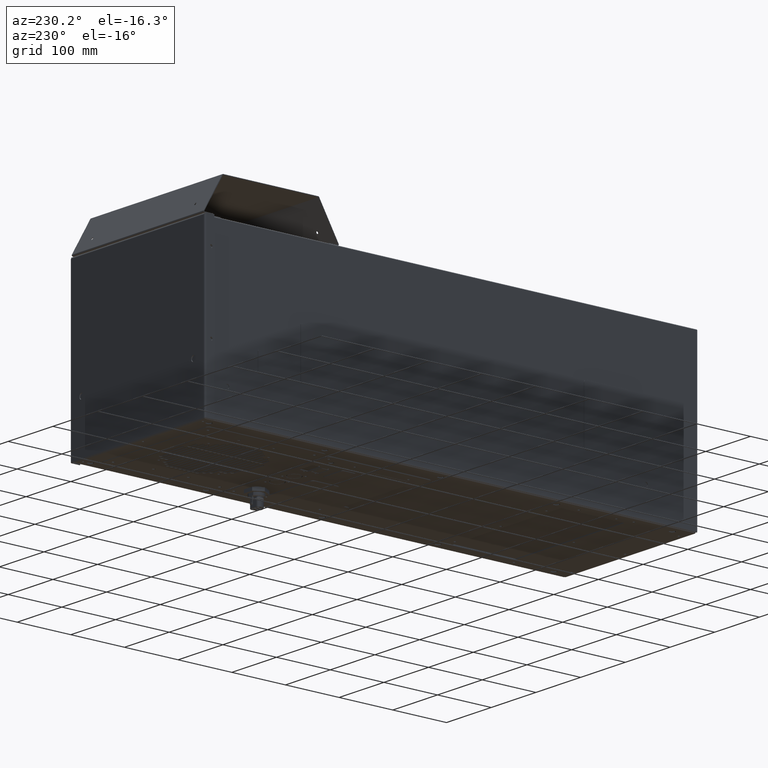
[diagram: clean part render]
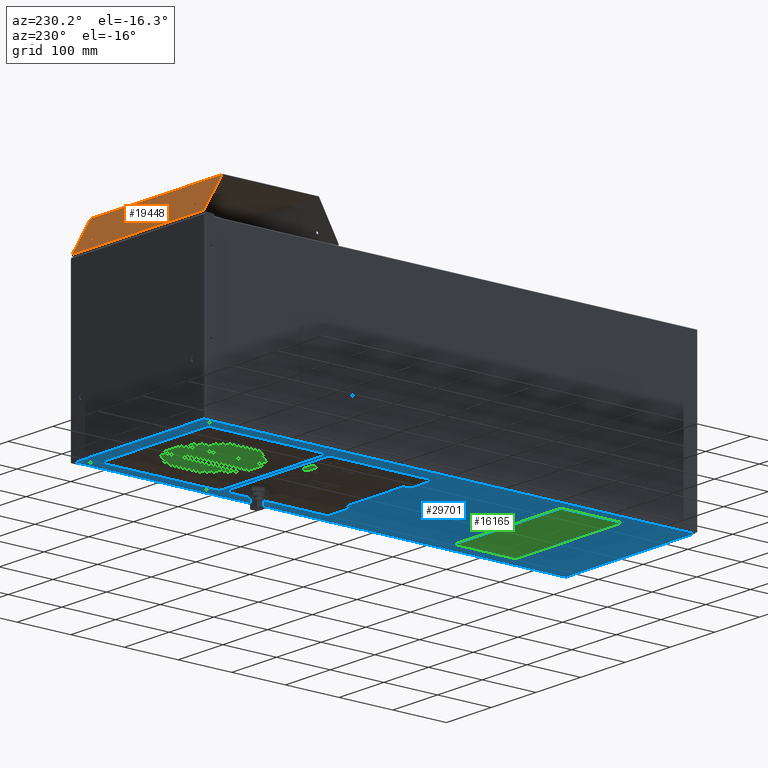
[diagram: same view with three faces highlighted in distinct colors, each labeled with its STEP entity id]
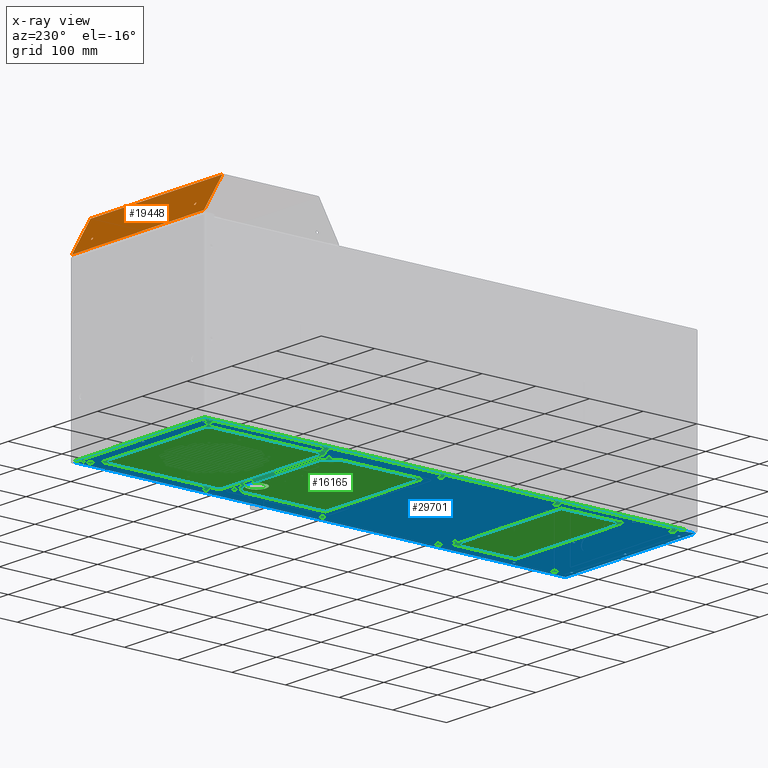
[diagram: x-ray of the same camera — body ghosted, the three highlighted faces saturated]
A machine part, auxiliary view with three faces highlighted in distinct colors.
The next image is the same camera in x-ray (body ghosted, the three faces saturated) — at least one of them is partly hidden behind the body in this view.
Their STEP definitions:

[orange] entity #19448 — the highlighted planar face has unit normal (0, -0.866, -0.5).
#2457 = DIRECTION ( 'NONE',  ( 0.000000000000000000, 0.4999905453168230762, -0.8660308623795032190 ) ) ;
#3767 = CIRCLE ( 'NONE', #55225, 0.08267716535433092262 ) ;
#6683 = DIRECTION ( 'NONE',  ( 0.000000000000000000, 0.4999905453168225766, -0.8660308623795033300 ) ) ;
#7520 = CARTESIAN_POINT ( 'NONE',  ( -4.540315676469235839, 17.58186449553767616, 7.025066396143484049 ) ) ;
#8170 = ORIENTED_EDGE ( 'NONE', *, *, #26878, .T. ) ;
#10397 = CARTESIAN_POINT ( 'NONE',  ( -5.807086614173227801, 18.04415675034011812, 6.224332534577696308 ) ) ;
#10748 = EDGE_CURVE ( 'NONE', #26561, #31500, #37881, .T. ) ;
#11382 = FACE_OUTER_BOUND ( 'NONE', #26945, .T. ) ;
#11447 = VECTOR ( 'NONE', #16179, 39.37007874015748854 ) ;
#11697 = EDGE_CURVE ( 'NONE', #37655, #36101, #12784, .T. ) ;
#12349 = CARTESIAN_POINT ( 'NONE',  ( -4.540315676469235839, 17.62320229652844716, 6.953465419332578890 ) ) ;
#12784 = CIRCLE ( 'NONE', #15849, 0.08267716535433092262 ) ;
#13597 = LINE ( 'NONE', #57892, #17727 ) ;
#15849 = AXIS2_PLACEMENT_3D ( 'NONE', #30296, #15943, #6683 ) ;
#15943 = DIRECTION ( 'NONE',  ( -5.054382104734891066E-19, 0.8660308623795032190, 0.4999905453168231317 ) ) ;
#16179 = DIRECTION ( 'NONE',  ( 8.099409005124490378E-19, 0.4999905453168230762, -0.8660308623795031080 ) ) ;
#17070 = EDGE_CURVE ( 'NONE', #31500, #40285, #22422, .T. ) ;
#17133 = PLANE ( 'NONE',  #37119 ) ;
#17727 = VECTOR ( 'NONE', #19322, 39.37007874015748854 ) ;
#19308 = DIRECTION ( 'NONE',  ( -5.054382104734891066E-19, 0.8660308623795032190, 0.4999905453168231317 ) ) ;
#19322 = DIRECTION ( 'NONE',  ( 8.099409005124490378E-19, 0.4999905453168230762, -0.8660308623795031080 ) ) ;
#19362 = CIRCLE ( 'NONE', #27508, 0.08267716535433092262 ) ;
#19448 = ADVANCED_FACE ( 'NONE', ( #11382, #55374, #40724 ), #17133, .F. ) ;
#19462 = VERTEX_POINT ( 'NONE', #26071 ) ;
#22240 = CARTESIAN_POINT ( 'NONE',  ( 4.540315676469219852, 17.58186449553767616, 7.025066396143484049 ) ) ;
#22422 = LINE ( 'NONE', #47286, #52471 ) ;
#22793 = CARTESIAN_POINT ( 'NONE',  ( 5.807086614173227801, 18.04415675034011812, 6.224332534577696308 ) ) ;
#22933 = ORIENTED_EDGE ( 'NONE', *, *, #17070, .F. ) ;
#23246 = ORIENTED_EDGE ( 'NONE', *, *, #45943, .F. ) ;
#23368 = ORIENTED_EDGE ( 'NONE', *, *, #54823, .F. ) ;
#23618 = CARTESIAN_POINT ( 'NONE',  ( 5.807086614173227801, 16.68604093374102604, 8.576717440406810056 ) ) ;
#24723 = DIRECTION ( 'NONE',  ( 0.000000000000000000, 0.4999905453168225766, -0.8660308623795033300 ) ) ;
#25804 = CIRCLE ( 'NONE', #59381, 0.08267716535433092262 ) ;
#26071 = CARTESIAN_POINT ( 'NONE',  ( -4.540315676469235839, 17.66454009751919330, 6.881864442521692382 ) ) ;
#26561 = VERTEX_POINT ( 'NONE', #54753 ) ;
#26878 = EDGE_CURVE ( 'NONE', #58667, #40285, #13597, .T. ) ;
#26945 = EDGE_LOOP ( 'NONE', ( #8170, #22933, #52797, #36445 ) ) ;
#27508 = AXIS2_PLACEMENT_3D ( 'NONE', #29510, #19308, #24723 ) ;
#29510 = CARTESIAN_POINT ( 'NONE',  ( 4.540315676469219852, 17.62320229652844716, 6.953465419332578890 ) ) ;
#30296 = CARTESIAN_POINT ( 'NONE',  ( 4.540315676469219852, 17.62320229652844716, 6.953465419332578890 ) ) ;
#31500 = VERTEX_POINT ( 'NONE', #10397 ) ;
#32134 = DIRECTION ( 'NONE',  ( 0.000000000000000000, 0.4999905453168225766, -0.8660308623795033300 ) ) ;
#33508 = EDGE_LOOP ( 'NONE', ( #23246, #47726 ) ) ;
#36101 = VERTEX_POINT ( 'NONE', #22240 ) ;
#36445 = ORIENTED_EDGE ( 'NONE', *, *, #46446, .T. ) ;
#36909 = DIRECTION ( 'NONE',  ( -5.054382104734891066E-19, 0.8660308623795032190, 0.4999905453168231317 ) ) ;
#37119 = AXIS2_PLACEMENT_3D ( 'NONE', #55996, #60477, #2457 ) ;
#37655 = VERTEX_POINT ( 'NONE', #51496 ) ;
#37881 = LINE ( 'NONE', #57315, #11447 ) ;
#37950 = DIRECTION ( 'NONE',  ( -5.054382104734891066E-19, 0.8660308623795032190, 0.4999905453168231317 ) ) ;
#39456 = DIRECTION ( 'NONE',  ( 1.000000000000000000, 3.276229677454505405E-20, 9.541481430247698699E-19 ) ) ;
#40285 = VERTEX_POINT ( 'NONE', #22793 ) ;
#40724 = FACE_BOUND ( 'NONE', #49839, .T. ) ;
#41427 = VERTEX_POINT ( 'NONE', #7520 ) ;
#45943 = EDGE_CURVE ( 'NONE', #19462, #41427, #3767, .T. ) ;
#46446 = EDGE_CURVE ( 'NONE', #26561, #58667, #59190, .T. ) ;
#47286 = CARTESIAN_POINT ( 'NONE',  ( -5.807086614173227801, 18.04415675034011812, 6.224332534577696308 ) ) ;
#47726 = ORIENTED_EDGE ( 'NONE', *, *, #48485, .F. ) ;
#48084 = VECTOR ( 'NONE', #39456, 39.37007874015748143 ) ;
#48448 = DIRECTION ( 'NONE',  ( 0.000000000000000000, 0.4999905453168225766, -0.8660308623795033300 ) ) ;
#48485 = EDGE_CURVE ( 'NONE', #41427, #19462, #25804, .T. ) ;
#49839 = EDGE_LOOP ( 'NONE', ( #52749, #23368 ) ) ;
#49946 = CARTESIAN_POINT ( 'NONE',  ( -5.807086614173227801, 16.68604093374102604, 8.576717440406810056 ) ) ;
#51496 = CARTESIAN_POINT ( 'NONE',  ( 4.540315676469219852, 17.66454009751919330, 6.881864442521692382 ) ) ;
#52471 = VECTOR ( 'NONE', #61304, 39.37007874015748143 ) ;
#52749 = ORIENTED_EDGE ( 'NONE', *, *, #11697, .F. ) ;
#52797 = ORIENTED_EDGE ( 'NONE', *, *, #10748, .F. ) ;
#52902 = CARTESIAN_POINT ( 'NONE',  ( -4.540315676469235839, 17.62320229652844716, 6.953465419332578890 ) ) ;
#54753 = CARTESIAN_POINT ( 'NONE',  ( -5.807086614173227801, 16.68604093374102604, 8.576717440406810056 ) ) ;
#54823 = EDGE_CURVE ( 'NONE', #36101, #37655, #19362, .T. ) ;
#55225 = AXIS2_PLACEMENT_3D ( 'NONE', #52902, #37950, #48448 ) ;
#55374 = FACE_BOUND ( 'NONE', #33508, .T. ) ;
#55996 = CARTESIAN_POINT ( 'NONE',  ( -5.807086614173227801, 16.67709217378716602, 8.592217538103975372 ) ) ;
#57315 = CARTESIAN_POINT ( 'NONE',  ( -5.807086614173227801, 16.67709217378716602, 8.592217538103975372 ) ) ;
#57892 = CARTESIAN_POINT ( 'NONE',  ( 5.807086614173227801, 16.67709217378716602, 8.592217538103975372 ) ) ;
#58667 = VERTEX_POINT ( 'NONE', #23618 ) ;
#59190 = LINE ( 'NONE', #49946, #48084 ) ;
#59381 = AXIS2_PLACEMENT_3D ( 'NONE', #12349, #36909, #32134 ) ;
#60477 = DIRECTION ( 'NONE',  ( 5.054382104731810541E-19, -0.8660308623795032190, -0.4999905453168230762 ) ) ;
#61304 = DIRECTION ( 'NONE',  ( 1.000000000000000000, 3.276229677454505405E-20, 9.541481430247698699E-19 ) ) ;

[blue] entity #29701 — the highlighted planar face has unit normal (-0, 0, 1).
#200 = VECTOR ( 'NONE', #43486, 39.37007874015748854 ) ;
#211 = VERTEX_POINT ( 'NONE', #22535 ) ;
#334 = DIRECTION ( 'NONE',  ( -0.9659258262890684232, -0.2588190450870966330, 2.825603441761910992E-06 ) ) ;
#340 = VERTEX_POINT ( 'NONE', #32729 ) ;
#468 = CARTESIAN_POINT ( 'NONE',  ( 4.311023622047244430, 0.6734089539810157454, -5.985536879718937442 ) ) ;
#471 = LINE ( 'NONE', #10036, #28748 ) ;
#484 = EDGE_CURVE ( 'NONE', #48155, #11201, #28899, .T. ) ;
#488 = LINE ( 'NONE', #1739, #6288 ) ;
#507 = ORIENTED_EDGE ( 'NONE', *, *, #17123, .F. ) ;
#619 = VERTEX_POINT ( 'NONE', #25377 ) ;
#638 = AXIS2_PLACEMENT_3D ( 'NONE', #48382, #30456, #1423 ) ;
#705 = CARTESIAN_POINT ( 'NONE',  ( 5.395669291338583307, -8.219231056323247131, -5.985439796159232273 ) ) ;
#737 = ORIENTED_EDGE ( 'NONE', *, *, #48088, .F. ) ;
#832 = VERTEX_POINT ( 'NONE', #47313 ) ;
#934 = LINE ( 'NONE', #1564, #60329 ) ;
#973 = ORIENTED_EDGE ( 'NONE', *, *, #33929, .F. ) ;
#999 = VERTEX_POINT ( 'NONE', #15500 ) ;
#1019 = ORIENTED_EDGE ( 'NONE', *, *, #41184, .F. ) ;
#1118 = DIRECTION ( 'NONE',  ( 0.8660254037844348218, -0.4999999999702099407, 5.458646678500910562E-06 ) ) ;
#1144 = AXIS2_PLACEMENT_3D ( 'NONE', #42442, #3853, #47849 ) ;
#1181 = AXIS2_PLACEMENT_3D ( 'NONE', #11779, #50356, #50029 ) ;
#1337 = DIRECTION ( 'NONE',  ( -3.275188005740921028E-20, 0.9999999999404064477, -1.091729335700000508E-05 ) ) ;
#1366 = VECTOR ( 'NONE', #51926, 39.37007874015748143 ) ;
#1423 = DIRECTION ( 'NONE',  ( -1.000000000000000000, 0.000000000000000000, 0.000000000000000000 ) ) ;
#1440 = EDGE_CURVE ( 'NONE', #340, #21210, #51715, .T. ) ;
#1498 = VERTEX_POINT ( 'NONE', #14389 ) ;
#1524 = VERTEX_POINT ( 'NONE', #48192 ) ;
#1542 = ORIENTED_EDGE ( 'NONE', *, *, #47586, .F. ) ;
#1564 = CARTESIAN_POINT ( 'NONE',  ( 5.037401574803149984, -8.219231056323268447, -5.985439796159232273 ) ) ;
#1595 = VECTOR ( 'NONE', #55273, 39.37007874015748854 ) ;
#1633 = CARTESIAN_POINT ( 'NONE',  ( -5.216535433070803585, -0.02950000068677244291, -5.985529205855688595 ) ) ;
#1679 = ORIENTED_EDGE ( 'NONE', *, *, #1440, .F. ) ;
#1739 = CARTESIAN_POINT ( 'NONE',  ( 3.523622047244094446, 7.641912890573621553, -5.985612956920689065 ) ) ;
#1741 = LINE ( 'NONE', #45106, #35660 ) ;
#1777 = CIRCLE ( 'NONE', #4808, 0.08267716535433070058 ) ;
#1905 = DIRECTION ( 'NONE',  ( 1.000000000000000000, 3.276229677454505405E-20, 9.541481430247698699E-19 ) ) ;
#1973 = EDGE_LOOP ( 'NONE', ( #41613, #45018 ) ) ;
#1978 = VERTEX_POINT ( 'NONE', #48537 ) ;
#1998 = VERTEX_POINT ( 'NONE', #43140 ) ;
#2006 = CARTESIAN_POINT ( 'NONE',  ( 5.216535433070866645, -17.02949999967377792, -5.985343611868622737 ) ) ;
#2031 = CARTESIAN_POINT ( 'NONE',  ( 4.214894572435331277, 7.643827721742283643, -5.985612977825453207 ) ) ;
#2034 = FACE_BOUND ( 'NONE', #59460, .T. ) ;
#2044 = ORIENTED_EDGE ( 'NONE', *, *, #47148, .F. ) ;
#2180 = DIRECTION ( 'NONE',  ( 0.8660254037844348218, -0.4999999999702099407, 5.458646678500910562E-06 ) ) ;
#2280 = VECTOR ( 'NONE', #59741, 39.37007874015748143 ) ;
#2309 = ORIENTED_EDGE ( 'NONE', *, *, #52331, .F. ) ;
#2545 = LINE ( 'NONE', #3152, #1366 ) ;
#2567 = CARTESIAN_POINT ( 'NONE',  ( 5.216535433070944805, 8.470499998806614528, -5.985622002849213530 ) ) ;
#2568 = ORIENTED_EDGE ( 'NONE', *, *, #6440, .F. ) ;
#2616 = EDGE_CURVE ( 'NONE', #12007, #37704, #44634, .T. ) ;
#2640 = CIRCLE ( 'NONE', #638, 0.08267716535433070058 ) ;
#2744 = EDGE_CURVE ( 'NONE', #3427, #40035, #13336, .T. ) ;
#2748 = VERTEX_POINT ( 'NONE', #31238 ) ;
#2810 = CARTESIAN_POINT ( 'NONE',  ( 5.216535433070866645, -16.61580807453104214, -5.985348128264724288 ) ) ;
#2818 = DIRECTION ( 'NONE',  ( -1.000000000000000000, 0.000000000000000000, 0.000000000000000000 ) ) ;
#2970 = EDGE_CURVE ( 'NONE', #21210, #39591, #49573, .T. ) ;
#2991 = EDGE_CURVE ( 'NONE', #40367, #619, #488, .T. ) ;
#3030 = EDGE_CURVE ( 'NONE', #57005, #42360, #40647, .T. ) ;
#3118 = CARTESIAN_POINT ( 'NONE',  ( 5.395669291338583307, -8.426077018894627457, -5.985437537961181498 ) ) ;
#3145 = CARTESIAN_POINT ( 'NONE',  ( 5.037401574803229032, 8.780768942663662813, -5.985625390146299907 ) ) ;
#3152 = CARTESIAN_POINT ( 'NONE',  ( -4.783464566929134243, -13.65336269870850572, -5.985380470149941345 ) ) ;
#3174 = CARTESIAN_POINT ( 'NONE',  ( 5.395669291338661466, 8.780768942663662813, -5.985625390146299907 ) ) ;
#3191 = LINE ( 'NONE', #22653, #57814 ) ;
#3218 = CARTESIAN_POINT ( 'NONE',  ( -5.395669291338583307, -8.219231056323188511, -5.985439796159232273 ) ) ;
#3282 = VECTOR ( 'NONE', #57129, 39.37007874015748143 ) ;
#3335 = DIRECTION ( 'NONE',  ( -1.000000000000000000, 0.000000000000000000, 0.000000000000000000 ) ) ;
#3427 = VERTEX_POINT ( 'NONE', #53638 ) ;
#3454 = EDGE_CURVE ( 'NONE', #37076, #20474, #11234, .T. ) ;
#3528 = ORIENTED_EDGE ( 'NONE', *, *, #37669, .F. ) ;
#3530 = CARTESIAN_POINT ( 'NONE',  ( -5.228732283464567310, -10.02294537609021674, -5.985420104480867032 ) ) ;
#3546 = VERTEX_POINT ( 'NONE', #3218 ) ;
#3650 = VERTEX_POINT ( 'NONE', #62183 ) ;
#3691 = VECTOR ( 'NONE', #50638, 39.37007874015748143 ) ;
#3853 = DIRECTION ( 'NONE',  ( 0.000000000000000000, -1.091729335700000508E-05, -0.9999999999404064477 ) ) ;
#3898 = CARTESIAN_POINT ( 'NONE',  ( -5.395669291338465179, 17.07392297958580585, -5.985715928941771402 ) ) ;
#3913 = LINE ( 'NONE', #14422, #22593 ) ;
#4002 = DIRECTION ( 'NONE',  ( -0.8660254037844388186, 0.4999999999702028353, -5.458646678500829246E-06 ) ) ;
#4098 = EDGE_CURVE ( 'NONE', #13834, #52663, #37840, .T. ) ;
#4106 = CARTESIAN_POINT ( 'NONE',  ( 5.037401574803268112, 17.07392297958572769, -5.985715928941771402 ) ) ;
#4128 = CARTESIAN_POINT ( 'NONE',  ( 5.216535433070952799, 8.884191923949330771, -5.985626519245315080 ) ) ;
#4180 = CARTESIAN_POINT ( 'NONE',  ( -5.216535433070803585, 0.3841919244559460211, -5.985533722251791033 ) ) ;
#4298 = AXIS2_PLACEMENT_3D ( 'NONE', #29389, #45301, #9919 ) ;
#4346 = CARTESIAN_POINT ( 'NONE',  ( 4.783464566929134243, -13.65336269870850572, -5.985380470149941345 ) ) ;
#4384 = VERTEX_POINT ( 'NONE', #61670 ) ;
#4394 = CARTESIAN_POINT ( 'NONE',  ( -2.578740157480358342, 0.6728939889455216594, -5.985536874096928805 ) ) ;
#4420 = CARTESIAN_POINT ( 'NONE',  ( -5.063377952755905298, -10.02294537609021674, -5.985420104480867032 ) ) ;
#4439 = CARTESIAN_POINT ( 'NONE',  ( 4.298330708661417532, -8.732102856482105935, -5.985434196987323041 ) ) ;
#4474 = DIRECTION ( 'NONE',  ( -0.8660254037844388186, 0.4999999999702028353, -5.458646678500829246E-06 ) ) ;
#4633 = ORIENTED_EDGE ( 'NONE', *, *, #8609, .F. ) ;
#4642 = CARTESIAN_POINT ( 'NONE',  ( 5.395669291338701434, 17.07392297958572769, -5.985715928941771402 ) ) ;
#4731 = ORIENTED_EDGE ( 'NONE', *, *, #38368, .F. ) ;
#4808 = AXIS2_PLACEMENT_3D ( 'NONE', #56032, #12357, #62071 ) ;
#4824 = CARTESIAN_POINT ( 'NONE',  ( -0.08267716535436595016, 17.65175540966212608, -5.985722237307933291 ) ) ;
#4978 = CIRCLE ( 'NONE', #51810, 0.08267716535433089486 ) ;
#4983 = EDGE_LOOP ( 'NONE', ( #41801, #13947, #14931, #7223, #20380, #32342 ) ) ;
#5090 = CARTESIAN_POINT ( 'NONE',  ( -5.216535433070771610, 8.884191923949408931, -5.985626519245315080 ) ) ;
#5092 = ORIENTED_EDGE ( 'NONE', *, *, #46008, .F. ) ;
#5109 = DIRECTION ( 'NONE',  ( -1.000000000000000000, 0.000000000000000000, 0.000000000000000000 ) ) ;
#5309 = ORIENTED_EDGE ( 'NONE', *, *, #52147, .F. ) ;
#5575 = DIRECTION ( 'NONE',  ( 1.000000000000000000, 3.276229677454505405E-20, 9.541481430247698699E-19 ) ) ;
#5675 = DIRECTION ( 'NONE',  ( 3.275188005740921028E-20, -0.9999999999404064477, 1.091729335700000508E-05 ) ) ;
#5779 = VECTOR ( 'NONE', #45488, 39.37007874015748143 ) ;
#5944 = EDGE_CURVE ( 'NONE', #29090, #1998, #11688, .T. ) ;
#5995 = ORIENTED_EDGE ( 'NONE', *, *, #39816, .F. ) ;
#6003 = DIRECTION ( 'NONE',  ( 0.2588190451025205729, 0.9659258262315053578, -1.054529560670014389E-05 ) ) ;
#6056 = DIRECTION ( 'NONE',  ( -1.000000000000000000, 0.000000000000000000, 0.000000000000000000 ) ) ;
#6120 = DIRECTION ( 'NONE',  ( 1.000000000000000000, 0.000000000000000000, 0.000000000000000000 ) ) ;
#6130 = CARTESIAN_POINT ( 'NONE',  ( 4.311023622047244430, 6.854511315817382489, -5.985604360626692433 ) ) ;
#6168 = VECTOR ( 'NONE', #42098, 39.37007874015747433 ) ;
#6288 = VECTOR ( 'NONE', #5575, 39.37007874015748143 ) ;
#6397 = LINE ( 'NONE', #11810, #37967 ) ;
#6417 = DIRECTION ( 'NONE',  ( -3.275188005740921028E-20, 0.9999999999404064477, -1.091729335700000508E-05 ) ) ;
#6419 = DIRECTION ( 'NONE',  ( -1.000000000000000000, 0.000000000000000000, 0.000000000000000000 ) ) ;
#6440 = EDGE_CURVE ( 'NONE', #41679, #31583, #11522, .T. ) ;
#6622 = VERTEX_POINT ( 'NONE', #58002 ) ;
#6730 = CARTESIAN_POINT ( 'NONE',  ( 4.488188976374882344, 16.83479239805636141, -5.985713318283051088 ) ) ;
#6754 = CARTESIAN_POINT ( 'NONE',  ( -4.143121470332653544, 7.375966858094174405, -5.985610053509821782 ) ) ;
#6767 = ORIENTED_EDGE ( 'NONE', *, *, #27236, .F. ) ;
#6814 = FACE_BOUND ( 'NONE', #44412, .T. ) ;
#6815 = CARTESIAN_POINT ( 'NONE',  ( 4.311023622047244430, 0.6734089539810157454, -5.985536879718937442 ) ) ;
#6962 = EDGE_LOOP ( 'NONE', ( #50432, #44949, #27185, #2309, #54935, #36896 ) ) ;
#6988 = CARTESIAN_POINT ( 'NONE',  ( 5.037401574803268112, 17.07392297958572769, -5.985715928941771402 ) ) ;
#7129 = CARTESIAN_POINT ( 'NONE',  ( 5.037401574803149984, -8.219231056323268447, -5.985439796159232273 ) ) ;
#7132 = FACE_BOUND ( 'NONE', #40966, .T. ) ;
#7223 = ORIENTED_EDGE ( 'NONE', *, *, #51591, .F. ) ;
#7235 = ORIENTED_EDGE ( 'NONE', *, *, #20965, .F. ) ;
#7367 = LINE ( 'NONE', #16955, #17619 ) ;
#7447 = DIRECTION ( 'NONE',  ( 1.000000000000000000, 8.739789886034629247E-14, 0.000000000000000000 ) ) ;
#7511 = DIRECTION ( 'NONE',  ( -1.000000000000000000, -3.276229677454505405E-20, -9.541481430247698699E-19 ) ) ;
#7545 = VERTEX_POINT ( 'NONE', #43763 ) ;
#7566 = VECTOR ( 'NONE', #20962, 39.37007874015748143 ) ;
#7709 = EDGE_CURVE ( 'NONE', #50904, #25123, #8493, .T. ) ;
#7763 = CARTESIAN_POINT ( 'NONE',  ( 4.277051902164685337, 7.411853409143386529, -5.985610445293838566 ) ) ;
#7813 = LINE ( 'NONE', #42566, #28229 ) ;
#7817 = DIRECTION ( 'NONE',  ( -1.000000000000000000, 0.000000000000000000, 0.000000000000000000 ) ) ;
#7924 = CIRCLE ( 'NONE', #25284, 0.08267716535433068670 ) ;
#7946 = VECTOR ( 'NONE', #53583, 39.37007874015748143 ) ;
#8031 = ORIENTED_EDGE ( 'NONE', *, *, #29140, .F. ) ;
#8063 = FACE_BOUND ( 'NONE', #41355, .T. ) ;
#8090 = CARTESIAN_POINT ( 'NONE',  ( -4.045077589551968167, 7.474010738869015569, -5.985611123883641582 ) ) ;
#8124 = CARTESIAN_POINT ( 'NONE',  ( -5.037401574803086923, 0.2807689431702669602, -5.985532593152756320 ) ) ;
#8154 = ORIENTED_EDGE ( 'NONE', *, *, #24180, .F. ) ;
#8273 = ORIENTED_EDGE ( 'NONE', *, *, #9801, .F. ) ;
#8296 = LINE ( 'NONE', #42115, #62274 ) ;
#8311 = CIRCLE ( 'NONE', #21575, 0.2362204724409451007 ) ;
#8337 = CARTESIAN_POINT ( 'NONE',  ( 5.395669291338701434, 17.07392297958572769, -5.985715928941771402 ) ) ;
#8343 = DIRECTION ( 'NONE',  ( 0.8660254037844388186, 0.4999999999702028353, -5.458646678499188544E-06 ) ) ;
#8437 = CARTESIAN_POINT ( 'NONE',  ( 5.767716535433070391, 17.92734596082680909, -5.985725246010827227 ) ) ;
#8493 = CIRCLE ( 'NONE', #47176, 0.08267716535433089486 ) ;
#8520 = VERTEX_POINT ( 'NONE', #3898 ) ;
#8561 = VECTOR ( 'NONE', #45128, 39.37007874015748143 ) ;
#8576 = EDGE_CURVE ( 'NONE', #53867, #35780, #18468, .T. ) ;
#8593 = ORIENTED_EDGE ( 'NONE', *, *, #41793, .F. ) ;
#8609 = EDGE_CURVE ( 'NONE', #52671, #7545, #44992, .T. ) ;
#8696 = CARTESIAN_POINT ( 'NONE',  ( -5.395669291338465179, 17.28076894215716308, -5.985718187139823065 ) ) ;
#8714 = VERTEX_POINT ( 'NONE', #6730 ) ;
#8783 = CARTESIAN_POINT ( 'NONE',  ( -5.216535433070866645, -8.529500000180236796, -5.985436408862146784 ) ) ;
#8785 = VECTOR ( 'NONE', #22786, 39.37007874015748854 ) ;
#8826 = DIRECTION ( 'NONE',  ( -0.8660254037844388186, 0.4999999999702028353, -5.458646678500829246E-06 ) ) ;
#8882 = EDGE_CURVE ( 'NONE', #55138, #34556, #57377, .T. ) ;
#8917 = DIRECTION ( 'NONE',  ( 1.000000000000000000, 0.000000000000000000, 0.000000000000000000 ) ) ;
#8973 = EDGE_CURVE ( 'NONE', #30542, #20975, #8311, .T. ) ;
#9019 = VECTOR ( 'NONE', #61994, 39.37007874015748143 ) ;
#9124 = EDGE_CURVE ( 'NONE', #49726, #26048, #62281, .T. ) ;
#9191 = ORIENTED_EDGE ( 'NONE', *, *, #25826, .T. ) ;
#9361 = EDGE_CURVE ( 'NONE', #42360, #16649, #471, .T. ) ;
#9409 = ORIENTED_EDGE ( 'NONE', *, *, #29358, .F. ) ;
#9537 = LINE ( 'NONE', #28999, #42459 ) ;
#9629 = DIRECTION ( 'NONE',  ( 0.000000000000000000, -1.091729335700000508E-05, -0.9999999999404064477 ) ) ;
#9662 = CARTESIAN_POINT ( 'NONE',  ( 0.09754330708658562332, -8.732102856482105935, -5.985434196987323041 ) ) ;
#9706 = EDGE_CURVE ( 'NONE', #9756, #33362, #37405, .T. ) ;
#9756 = VERTEX_POINT ( 'NONE', #23362 ) ;
#9785 = LINE ( 'NONE', #39444, #15082 ) ;
#9794 = EDGE_CURVE ( 'NONE', #23707, #12630, #19221, .T. ) ;
#9801 = EDGE_CURVE ( 'NONE', #7545, #340, #3913, .T. ) ;
#9919 = DIRECTION ( 'NONE',  ( -1.000000000000000000, 0.000000000000000000, 0.000000000000000000 ) ) ;
#9982 = ORIENTED_EDGE ( 'NONE', *, *, #33842, .F. ) ;
#10036 = CARTESIAN_POINT ( 'NONE',  ( 5.216535433070952799, 8.884191923949330771, -5.985626519245315080 ) ) ;
#10053 = EDGE_CURVE ( 'NONE', #25909, #999, #8296, .T. ) ;
#10198 = CARTESIAN_POINT ( 'NONE',  ( 4.783464566929134243, -9.007693407646771178, -5.985431188284429993 ) ) ;
#10253 = VECTOR ( 'NONE', #25907, 39.37007874015748854 ) ;
#10455 = VERTEX_POINT ( 'NONE', #21023 ) ;
#10466 = CIRCLE ( 'NONE', #46120, 0.08267716535433035363 ) ;
#10608 = CARTESIAN_POINT ( 'NONE',  ( 2.578740157480271300, -0.07265403810050885536, -5.985528734730394262 ) ) ;
#10646 = EDGE_CURVE ( 'NONE', #42657, #14757, #23845, .T. ) ;
#11074 = LINE ( 'NONE', #30213, #5779 ) ;
#11080 = CIRCLE ( 'NONE', #46704, 0.2362204724409451007 ) ;
#11155 = DIRECTION ( 'NONE',  ( -1.000000000000000000, 0.000000000000000000, 0.000000000000000000 ) ) ;
#11201 = VERTEX_POINT ( 'NONE', #33039 ) ;
#11208 = EDGE_CURVE ( 'NONE', #62571, #33745, #52452, .T. ) ;
#11234 = LINE ( 'NONE', #34217, #17611 ) ;
#11250 = ORIENTED_EDGE ( 'NONE', *, *, #30469, .F. ) ;
#11281 = LINE ( 'NONE', #6815, #2280 ) ;
#11311 = VERTEX_POINT ( 'NONE', #25661 ) ;
#11412 = CARTESIAN_POINT ( 'NONE',  ( 4.045077589551953068, 7.474010738869015569, -5.985611123883641582 ) ) ;
#11522 = LINE ( 'NONE', #36090, #47366 ) ;
#11601 = FACE_BOUND ( 'NONE', #55526, .T. ) ;
#11612 = DIRECTION ( 'NONE',  ( -8.836080103595833240E-17, -0.9999999999404064477, 1.091729335700000508E-05 ) ) ;
#11623 = CARTESIAN_POINT ( 'NONE',  ( -4.312938453216031753, 7.545783840967421163, -5.985611907451653835 ) ) ;
#11688 = CIRCLE ( 'NONE', #19839, 0.08267716535433035363 ) ;
#11717 = EDGE_CURVE ( 'NONE', #43541, #45928, #16570, .T. ) ;
#11732 = LINE ( 'NONE', #11412, #46608 ) ;
#11757 = LINE ( 'NONE', #12687, #3691 ) ;
#11779 = CARTESIAN_POINT ( 'NONE',  ( -1.254942672089521699E-15, -17.71832332838751967, -5.985336091782262891 ) ) ;
#11806 = CARTESIAN_POINT ( 'NONE',  ( 5.282692913385827360, -13.95729975830828806, -5.985377151979901278 ) ) ;
#11810 = CARTESIAN_POINT ( 'NONE',  ( 4.311023622047244430, 6.854511315817382489, -5.985604360626692433 ) ) ;
#11909 = CARTESIAN_POINT ( 'NONE',  ( 5.037401574803149984, -8.426077018894627457, -5.985437537961181498 ) ) ;
#11915 = CARTESIAN_POINT ( 'NONE',  ( 5.037401574803149984, -8.426077018894627457, -5.985437537961181498 ) ) ;
#11935 = AXIS2_PLACEMENT_3D ( 'NONE', #11806, #21695, #55791 ) ;
#11958 = CARTESIAN_POINT ( 'NONE',  ( 4.724409448815826806, 8.094634918262263668, -5.985617899419861665 ) ) ;
#12007 = VERTEX_POINT ( 'NONE', #4394 ) ;
#12226 = FACE_BOUND ( 'NONE', #39005, .T. ) ;
#12245 = CARTESIAN_POINT ( 'NONE',  ( -5.037401574803149984, -16.71923105581665325, -5.985346999165687798 ) ) ;
#12276 = LINE ( 'NONE', #8437, #9019 ) ;
#12299 = ORIENTED_EDGE ( 'NONE', *, *, #15442, .F. ) ;
#12357 = DIRECTION ( 'NONE',  ( 0.000000000000000000, -1.091729335700000508E-05, -0.9999999999404064477 ) ) ;
#12387 = ORIENTED_EDGE ( 'NONE', *, *, #28391, .F. ) ;
#12441 = CARTESIAN_POINT ( 'NONE',  ( 5.216535433070920824, 0.3841919244558740232, -5.985533722251791033 ) ) ;
#12507 = DIRECTION ( 'NONE',  ( -0.8660254037844388186, 0.4999999999702028353, -5.458646678500829246E-06 ) ) ;
#12538 = FACE_BOUND ( 'NONE', #49270, .T. ) ;
#12556 = VECTOR ( 'NONE', #42940, 39.37007874015748143 ) ;
#12630 = VERTEX_POINT ( 'NONE', #44453 ) ;
#12675 = ORIENTED_EDGE ( 'NONE', *, *, #22658, .F. ) ;
#12687 = CARTESIAN_POINT ( 'NONE',  ( -5.037401574803149984, -8.219231056323188511, -5.985439796159232273 ) ) ;
#12755 = EDGE_CURVE ( 'NONE', #31522, #20116, #60058, .T. ) ;
#12763 = ORIENTED_EDGE ( 'NONE', *, *, #58897, .F. ) ;
#12844 = CARTESIAN_POINT ( 'NONE',  ( -3.571037549218003950E-14, 17.65175540966212608, -5.985722237307933291 ) ) ;
#12873 = EDGE_CURVE ( 'NONE', #46974, #42781, #32307, .T. ) ;
#12897 = CARTESIAN_POINT ( 'NONE',  ( -5.358267716535433323, 17.65175540966212608, -5.985722237307933291 ) ) ;
#12941 = CARTESIAN_POINT ( 'NONE',  ( -2.578740157480358342, 0.6734089539810157454, -5.985536879718937442 ) ) ;
#12949 = ORIENTED_EDGE ( 'NONE', *, *, #24916, .F. ) ;
#13055 = EDGE_CURVE ( 'NONE', #10455, #39182, #26442, .T. ) ;
#13157 = ORIENTED_EDGE ( 'NONE', *, *, #24457, .F. ) ;
#13226 = LINE ( 'NONE', #42867, #14602 ) ;
#13272 = VECTOR ( 'NONE', #14729, 39.37007874015748854 ) ;
#13279 = ORIENTED_EDGE ( 'NONE', *, *, #35659, .F. ) ;
#13336 = CIRCLE ( 'NONE', #1181, 0.08267716535433070058 ) ;
#13416 = AXIS2_PLACEMENT_3D ( 'NONE', #44913, #25802, #34107 ) ;
#13436 = VECTOR ( 'NONE', #52368, 39.37007874015748854 ) ;
#13443 = LINE ( 'NONE', #57429, #39476 ) ;
#13464 = CIRCLE ( 'NONE', #14526, 0.08267716535433089486 ) ;
#13501 = VERTEX_POINT ( 'NONE', #48620 ) ;
#13564 = VECTOR ( 'NONE', #5675, 39.37007874015748143 ) ;
#13631 = ORIENTED_EDGE ( 'NONE', *, *, #8973, .T. ) ;
#13642 = EDGE_CURVE ( 'NONE', #24572, #29658, #35854, .T. ) ;
#13712 = CARTESIAN_POINT ( 'NONE',  ( 0.2628976377952460530, -8.732102856482105935, -5.985434196987323041 ) ) ;
#13717 = VERTEX_POINT ( 'NONE', #7763 ) ;
#13834 = VERTEX_POINT ( 'NONE', #705 ) ;
#13947 = ORIENTED_EDGE ( 'NONE', *, *, #28876, .F. ) ;
#13964 = ORIENTED_EDGE ( 'NONE', *, *, #33226, .F. ) ;
#13989 = EDGE_CURVE ( 'NONE', #999, #59038, #16965, .T. ) ;
#14027 = EDGE_CURVE ( 'NONE', #56196, #1498, #21461, .T. ) ;
#14042 = CARTESIAN_POINT ( 'NONE',  ( -5.395669291338465179, 17.28076894215716308, -5.985718187139823065 ) ) ;
#14068 = CARTESIAN_POINT ( 'NONE',  ( 4.277051902164685337, 7.411853409143386529, -5.985610445293838566 ) ) ;
#14103 = CARTESIAN_POINT ( 'NONE',  ( 5.192913385826771311, 17.65175540966212608, -5.985722237307933291 ) ) ;
#14217 = VECTOR ( 'NONE', #58193, 39.37007874015748854 ) ;
#14277 = VERTEX_POINT ( 'NONE', #5090 ) ;
#14389 = CARTESIAN_POINT ( 'NONE',  ( -4.488188976381023210, 8.094634918262263668, -5.985617899419861665 ) ) ;
#14396 = VECTOR ( 'NONE', #4002, 39.37007874015748854 ) ;
#14398 = DIRECTION ( 'NONE',  ( 0.000000000000000000, -1.091729335700000508E-05, -0.9999999999404064477 ) ) ;
#14422 = CARTESIAN_POINT ( 'NONE',  ( -5.395669291338519358, 0.07392298059890728412, -5.985530334954704657 ) ) ;
#14526 = AXIS2_PLACEMENT_3D ( 'NONE', #53691, #59105, #26287 ) ;
#14602 = VECTOR ( 'NONE', #52742, 39.37007874015747433 ) ;
#14657 = VECTOR ( 'NONE', #1118, 39.37007874015747433 ) ;
#14687 = CARTESIAN_POINT ( 'NONE',  ( -5.216535433070771610, 8.470499998806692687, -5.985622002849213530 ) ) ;
#14692 = LINE ( 'NONE', #14068, #57669 ) ;
#14729 = DIRECTION ( 'NONE',  ( -0.8660254037844388186, -0.4999999999702028353, 5.458646678499178379E-06 ) ) ;
#14746 = LINE ( 'NONE', #44380, #47383 ) ;
#14757 = VERTEX_POINT ( 'NONE', #24402 ) ;
#14775 = ORIENTED_EDGE ( 'NONE', *, *, #17604, .F. ) ;
#14782 = ORIENTED_EDGE ( 'NONE', *, *, #37180, .F. ) ;
#14900 = DIRECTION ( 'NONE',  ( 3.275188005740921028E-20, -0.9999999999404064477, 1.091729335700000508E-05 ) ) ;
#14919 = CARTESIAN_POINT ( 'NONE',  ( 5.767716535433070391, -18.07265403702783502, -5.985332223449979949 ) ) ;
#14931 = ORIENTED_EDGE ( 'NONE', *, *, #55716, .F. ) ;
#14946 = CARTESIAN_POINT ( 'NONE',  ( -5.037401574803086923, 0.2807689431702669602, -5.985532593152756320 ) ) ;
#14986 = VERTEX_POINT ( 'NONE', #55286 ) ;
#14987 = CIRCLE ( 'NONE', #11935, 0.08267716535433035363 ) ;
#14994 = VERTEX_POINT ( 'NONE', #11623 ) ;
#15053 = DIRECTION ( 'NONE',  ( 0.000000000000000000, -1.091729335700000508E-05, -0.9999999999404064477 ) ) ;
#15061 = CARTESIAN_POINT ( 'NONE',  ( -5.395669291338583307, -8.426077018894549298, -5.985437537961181498 ) ) ;
#15072 = ORIENTED_EDGE ( 'NONE', *, *, #2991, .F. ) ;
#15082 = VECTOR ( 'NONE', #43595, 39.37007874015748854 ) ;
#15113 = CARTESIAN_POINT ( 'NONE',  ( -4.214894572435339271, 7.643827721742283643, -5.985612977825453207 ) ) ;
#15401 = VECTOR ( 'NONE', #55776, 39.37007874015748854 ) ;
#15442 = EDGE_CURVE ( 'NONE', #28159, #28802, #37836, .T. ) ;
#15455 = VERTEX_POINT ( 'NONE', #47535 ) ;
#15484 = VECTOR ( 'NONE', #33051, 39.37007874015748143 ) ;
#15500 = CARTESIAN_POINT ( 'NONE',  ( -4.143121470332653544, 7.375966858094174405, -5.985610053509821782 ) ) ;
#15518 = VECTOR ( 'NONE', #61000, 39.37007874015748854 ) ;
#15556 = AXIS2_PLACEMENT_3D ( 'NONE', #56580, #32381, #3335 ) ;
#15701 = LINE ( 'NONE', #59666, #36964 ) ;
#15709 = CARTESIAN_POINT ( 'NONE',  ( -4.488188976381023210, 8.330855390689134055, -5.985620478308051773 ) ) ;
#15754 = CARTESIAN_POINT ( 'NONE',  ( 5.037401574803149984, -16.92607701838809220, -5.985344740967637911 ) ) ;
#15784 = CARTESIAN_POINT ( 'NONE',  ( -5.037401574803149984, -16.92607701838801049, -5.985344740967637911 ) ) ;
#15945 = CARTESIAN_POINT ( 'NONE',  ( 0.1802204724409161574, -8.732102856482105935, -5.985434196987323041 ) ) ;
#16049 = VERTEX_POINT ( 'NONE', #19207 ) ;
#16098 = CIRCLE ( 'NONE', #30332, 0.08267716535433070058 ) ;
#16107 = ORIENTED_EDGE ( 'NONE', *, *, #2616, .T. ) ;
#16128 = EDGE_CURVE ( 'NONE', #30607, #61779, #38025, .T. ) ;
#16132 = ORIENTED_EDGE ( 'NONE', *, *, #28052, .F. ) ;
#16328 = DIRECTION ( 'NONE',  ( 0.000000000000000000, 1.091729335700000508E-05, 0.9999999999404064477 ) ) ;
#16388 = DIRECTION ( 'NONE',  ( 0.7071067811865574537, -0.7071067811443985107, 7.719692164938104153E-06 ) ) ;
#16390 = FACE_BOUND ( 'NONE', #29442, .T. ) ;
#16512 = VERTEX_POINT ( 'NONE', #53850 ) ;
#16570 = LINE ( 'NONE', #10198, #23977 ) ;
#16625 = CARTESIAN_POINT ( 'NONE',  ( -5.185811023622046712, -13.95729975830828806, -5.985377151979901278 ) ) ;
#16649 = VERTEX_POINT ( 'NONE', #20063 ) ;
#16710 = DIRECTION ( 'NONE',  ( -1.000000000000000000, 0.000000000000000000, 0.000000000000000000 ) ) ;
#16717 = FACE_BOUND ( 'NONE', #35796, .T. ) ;
#16727 = LINE ( 'NONE', #25975, #1595 ) ;
#16852 = EDGE_LOOP ( 'NONE', ( #29848, #3528 ) ) ;
#16955 = CARTESIAN_POINT ( 'NONE',  ( -5.037401574803031856, 17.28076894215718440, -5.985718187139823065 ) ) ;
#16957 = CIRCLE ( 'NONE', #48474, 0.08267716535433035363 ) ;
#16965 = LINE ( 'NONE', #6754, #10253 ) ;
#17026 = FACE_BOUND ( 'NONE', #4983, .T. ) ;
#17123 = EDGE_CURVE ( 'NONE', #42071, #37680, #32627, .T. ) ;
#17175 = LINE ( 'NONE', #22254, #56739 ) ;
#17176 = ORIENTED_EDGE ( 'NONE', *, *, #26780, .F. ) ;
#17218 = CIRCLE ( 'NONE', #24290, 0.08267716535433089486 ) ;
#17324 = CARTESIAN_POINT ( 'NONE',  ( -4.080964140603307477, 7.607941170693070632, -5.985612586041457739 ) ) ;
#17337 = FACE_BOUND ( 'NONE', #58038, .T. ) ;
#17578 = VECTOR ( 'NONE', #34904, 39.37007874015748143 ) ;
#17604 = EDGE_CURVE ( 'NONE', #16512, #3650, #18204, .T. ) ;
#17611 = VECTOR ( 'NONE', #24643, 39.37007874015748854 ) ;
#17619 = VECTOR ( 'NONE', #55509, 39.37007874015748143 ) ;
#17649 = FACE_BOUND ( 'NONE', #19054, .T. ) ;
#17763 = VERTEX_POINT ( 'NONE', #6988 ) ;
#17885 = DIRECTION ( 'NONE',  ( -0.7071067811865474617, -0.7071067811444085027, 7.719692164936874261E-06 ) ) ;
#18024 = CARTESIAN_POINT ( 'NONE',  ( 4.724409112811787992, -17.71832332838751967, -5.985336091782262891 ) ) ;
#18204 = LINE ( 'NONE', #57394, #21962 ) ;
#18264 = CARTESIAN_POINT ( 'NONE',  ( 5.680716535433071535, 17.92734596082680909, -5.985725246010827227 ) ) ;
#18277 = VERTEX_POINT ( 'NONE', #12941 ) ;
#18292 = CARTESIAN_POINT ( 'NONE',  ( -4.080964140603307477, 7.607941170693070632, -5.985612586041457739 ) ) ;
#18392 = DIRECTION ( 'NONE',  ( 0.000000000000000000, -1.091729335700000508E-05, -0.9999999999404064477 ) ) ;
#18409 = AXIS2_PLACEMENT_3D ( 'NONE', #15709, #16328, #6120 ) ;
#18468 = CIRCLE ( 'NONE', #37816, 0.08267716535433035363 ) ;
#18476 = CARTESIAN_POINT ( 'NONE',  ( -4.783464566929134243, -9.007693407646771178, -5.985431188284429993 ) ) ;
#18856 = CARTESIAN_POINT ( 'NONE',  ( -4.807086614173228689, -17.71832332838751967, -5.985336091782262891 ) ) ;
#19054 = EDGE_LOOP ( 'NONE', ( #30012, #20922, #14782, #46804, #21091, #28716 ) ) ;
#19133 = VECTOR ( 'NONE', #4474, 39.37007874015748854 ) ;
#19152 = CIRCLE ( 'NONE', #45592, 0.08267716535433070058 ) ;
#19169 = VECTOR ( 'NONE', #56424, 39.37007874015748143 ) ;
#19192 = CARTESIAN_POINT ( 'NONE',  ( -5.395669291338519358, 0.2807689431702645733, -5.985532593152756320 ) ) ;
#19207 = CARTESIAN_POINT ( 'NONE',  ( 4.783464566929134243, -13.65336269870850572, -5.985380470149941345 ) ) ;
#19221 = LINE ( 'NONE', #8696, #13436 ) ;
#19246 = ORIENTED_EDGE ( 'NONE', *, *, #32713, .F. ) ;
#19344 = CARTESIAN_POINT ( 'NONE',  ( 4.214894572435331277, 7.643827721742283643, -5.985612977825453207 ) ) ;
#19363 = EDGE_CURVE ( 'NONE', #61779, #53932, #30223, .T. ) ;
#19378 = VERTEX_POINT ( 'NONE', #55050 ) ;
#19544 = DIRECTION ( 'NONE',  ( 3.275188005740921028E-20, -0.9999999999404064477, 1.091729335700000508E-05 ) ) ;
#19548 = EDGE_LOOP ( 'NONE', ( #737, #39334, #31800, #26128, #2568, #57939 ) ) ;
#19778 = EDGE_LOOP ( 'NONE', ( #41734, #12299 ) ) ;
#19839 = AXIS2_PLACEMENT_3D ( 'NONE', #46647, #36771, #16710 ) ;
#19840 = DIRECTION ( 'NONE',  ( -3.275188005740921028E-20, 0.9999999999404064477, -1.091729335700000508E-05 ) ) ;
#19852 = ORIENTED_EDGE ( 'NONE', *, *, #37894, .F. ) ;
#20063 = CARTESIAN_POINT ( 'NONE',  ( 5.395669291338661466, 8.780768942663662813, -5.985625390146299907 ) ) ;
#20116 = VERTEX_POINT ( 'NONE', #43645 ) ;
#20380 = ORIENTED_EDGE ( 'NONE', *, *, #12755, .F. ) ;
#20394 = EDGE_LOOP ( 'NONE', ( #5995, #36250, #9982, #47012, #34314, #12387 ) ) ;
#20403 = DIRECTION ( 'NONE',  ( 0.000000000000000000, -1.091729335700000508E-05, -0.9999999999404064477 ) ) ;
#20446 = LINE ( 'NONE', #35135, #43544 ) ;
#20474 = VERTEX_POINT ( 'NONE', #47725 ) ;
#20531 = EDGE_CURVE ( 'NONE', #45928, #16049, #48027, .T. ) ;
#20610 = EDGE_CURVE ( 'NONE', #56001, #832, #55314, .T. ) ;
#20665 = AXIS2_PLACEMENT_3D ( 'NONE', #32235, #27144, #51360 ) ;
#20779 = DIRECTION ( 'NONE',  ( -1.000000000000000000, -3.276229677454505405E-20, -9.541481430247698699E-19 ) ) ;
#20905 = LINE ( 'NONE', #59473, #8561 ) ;
#20907 = DIRECTION ( 'NONE',  ( 0.8660254037844388186, 0.4999999999702028353, -5.458646678499188544E-06 ) ) ;
#20922 = ORIENTED_EDGE ( 'NONE', *, *, #484, .F. ) ;
#20962 = DIRECTION ( 'NONE',  ( -1.000000000000000000, 1.894250917235314829E-16, -9.562165099959431078E-19 ) ) ;
#20965 = EDGE_CURVE ( 'NONE', #3650, #211, #33308, .T. ) ;
#20975 = VERTEX_POINT ( 'NONE', #39341 ) ;
#21023 = CARTESIAN_POINT ( 'NONE',  ( -5.228732283464567310, -12.77885088773700772, -5.985390017451928557 ) ) ;
#21034 = VERTEX_POINT ( 'NONE', #35815 ) ;
#21091 = ORIENTED_EDGE ( 'NONE', *, *, #45896, .F. ) ;
#21103 = DIRECTION ( 'NONE',  ( 0.000000000000000000, -1.091729335700000508E-05, -0.9999999999404064477 ) ) ;
#21142 = VECTOR ( 'NONE', #19544, 39.37007874015748143 ) ;
#21210 = VERTEX_POINT ( 'NONE', #4180 ) ;
#21269 = ORIENTED_EDGE ( 'NONE', *, *, #29375, .F. ) ;
#21308 = DIRECTION ( 'NONE',  ( -0.8660254037844388186, 0.4999999999702028353, -5.458646678500829246E-06 ) ) ;
#21370 = EDGE_CURVE ( 'NONE', #28802, #28159, #58267, .T. ) ;
#21404 = CARTESIAN_POINT ( 'NONE',  ( 5.395669291338637485, 0.2807689431701945182, -5.985532593152756320 ) ) ;
#21420 = DIRECTION ( 'NONE',  ( -0.2588190451025205729, 0.9659258262315053578, -1.054529560670062331E-05 ) ) ;
#21461 = CIRCLE ( 'NONE', #18409, 0.2362204724409451007 ) ;
#21575 = AXIS2_PLACEMENT_3D ( 'NONE', #33167, #52580, #8917 ) ;
#21684 = DIRECTION ( 'NONE',  ( 0.000000000000000000, -1.091729335700000508E-05, -0.9999999999404064477 ) ) ;
#21695 = DIRECTION ( 'NONE',  ( 0.000000000000000000, -1.091729335700000508E-05, -0.9999999999404064477 ) ) ;
#21873 = DIRECTION ( 'NONE',  ( 0.000000000000000000, -1.091729335700000508E-05, -0.9999999999404064477 ) ) ;
#21913 = EDGE_CURVE ( 'NONE', #29041, #51219, #27650, .T. ) ;
#21918 = CARTESIAN_POINT ( 'NONE',  ( -5.037401574803149984, -8.426077018894549298, -5.985437537961181498 ) ) ;
#21962 = VECTOR ( 'NONE', #37644, 39.37007874015748143 ) ;
#22104 = LINE ( 'NONE', #11909, #51695 ) ;
#22108 = FACE_BOUND ( 'NONE', #6962, .T. ) ;
#22137 = DIRECTION ( 'NONE',  ( 1.000000000000000000, 0.000000000000000000, 0.000000000000000000 ) ) ;
#22254 = CARTESIAN_POINT ( 'NONE',  ( 4.080964140603307477, 7.607941170693070632, -5.985612586041457739 ) ) ;
#22305 = EDGE_CURVE ( 'NONE', #37199, #52671, #43423, .T. ) ;
#22418 = FACE_BOUND ( 'NONE', #20394, .T. ) ;
#22472 = VERTEX_POINT ( 'NONE', #44991 ) ;
#22535 = CARTESIAN_POINT ( 'NONE',  ( -5.216535433070771610, 8.470499998806692687, -5.985622002849213530 ) ) ;
#22553 = VECTOR ( 'NONE', #38876, 39.37007874015748143 ) ;
#22559 = CARTESIAN_POINT ( 'NONE',  ( 4.312938453216023760, 7.545783840967421163, -5.985611907451653835 ) ) ;
#22593 = VECTOR ( 'NONE', #57780, 39.37007874015748143 ) ;
#22653 = CARTESIAN_POINT ( 'NONE',  ( -5.216535433070866645, -16.61580807453096398, -5.985348128264724288 ) ) ;
#22658 = EDGE_CURVE ( 'NONE', #37680, #11311, #31293, .T. ) ;
#22731 = DIRECTION ( 'NONE',  ( 0.000000000000000000, -1.091729335700000508E-05, -0.9999999999404064477 ) ) ;
#22767 = CARTESIAN_POINT ( 'NONE',  ( 4.488188976374882344, 16.59857192562951056, -5.985710739394862756 ) ) ;
#22786 = DIRECTION ( 'NONE',  ( -0.8660254037844388186, 0.4999999999702028353, -5.458646678500829246E-06 ) ) ;
#22798 = DIRECTION ( 'NONE',  ( 3.275188005740921028E-20, -0.9999999999404064477, 1.091729335700000508E-05 ) ) ;
#23053 = EDGE_CURVE ( 'NONE', #37146, #53807, #11757, .T. ) ;
#23065 = VERTEX_POINT ( 'NONE', #46181 ) ;
#23111 = ORIENTED_EDGE ( 'NONE', *, *, #4098, .F. ) ;
#23286 = AXIS2_PLACEMENT_3D ( 'NONE', #18024, #21873, #7817 ) ;
#23362 = CARTESIAN_POINT ( 'NONE',  ( 5.216535433070866645, -8.529500000180295416, -5.985436408862146784 ) ) ;
#23412 = VECTOR ( 'NONE', #11612, 39.37007874015748143 ) ;
#23413 = CARTESIAN_POINT ( 'NONE',  ( -5.216535433070866645, -17.02949999967369976, -5.985343611868622737 ) ) ;
#23503 = DIRECTION ( 'NONE',  ( -0.2588190451025200733, -0.9659258262315053578, 1.054529560670014389E-05 ) ) ;
#23512 = ORIENTED_EDGE ( 'NONE', *, *, #11717, .F. ) ;
#23651 = LINE ( 'NONE', #43112, #55383 ) ;
#23707 = VERTEX_POINT ( 'NONE', #14042 ) ;
#23845 = LINE ( 'NONE', #38201, #32842 ) ;
#23908 = CARTESIAN_POINT ( 'NONE',  ( 5.037401574803268112, 17.28076894215710624, -5.985718187139823065 ) ) ;
#23965 = CARTESIAN_POINT ( 'NONE',  ( 0.007102362204688189226, -13.95729975830828806, -5.985377151979901278 ) ) ;
#23977 = VECTOR ( 'NONE', #1905, 39.37007874015748143 ) ;
#24180 = EDGE_CURVE ( 'NONE', #1978, #8714, #11074, .T. ) ;
#24284 = VERTEX_POINT ( 'NONE', #18292 ) ;
#24290 = AXIS2_PLACEMENT_3D ( 'NONE', #50550, #36547, #56582 ) ;
#24402 = CARTESIAN_POINT ( 'NONE',  ( 5.216535433070866645, -17.02949999967377792, -5.985343611868622737 ) ) ;
#24457 = EDGE_CURVE ( 'NONE', #2748, #37704, #54273, .T. ) ;
#24572 = VERTEX_POINT ( 'NONE', #6130 ) ;
#24597 = CARTESIAN_POINT ( 'NONE',  ( -3.937889763779527375, -8.732102856482105935, -5.985434196987323041 ) ) ;
#24605 = DIRECTION ( 'NONE',  ( -0.8660254037844388186, 0.4999999999702028353, -5.458646678500829246E-06 ) ) ;
#24631 = VERTEX_POINT ( 'NONE', #60630 ) ;
#24643 = DIRECTION ( 'NONE',  ( -0.8660254037844388186, -0.4999999999702028353, 5.458646678499178379E-06 ) ) ;
#24721 = DIRECTION ( 'NONE',  ( 0.8660254037844388186, 0.4999999999702028353, -5.458646678499188544E-06 ) ) ;
#24899 = VECTOR ( 'NONE', #2180, 39.37007874015747433 ) ;
#24916 = EDGE_CURVE ( 'NONE', #211, #4384, #34461, .T. ) ;
#24956 = VECTOR ( 'NONE', #16388, 39.37007874015748854 ) ;
#25022 = LINE ( 'NONE', #25968, #17578 ) ;
#25037 = EDGE_CURVE ( 'NONE', #26048, #49726, #16098, .T. ) ;
#25081 = CARTESIAN_POINT ( 'NONE',  ( 5.216535433070866645, -16.61580807453104214, -5.985348128264724288 ) ) ;
#25123 = VERTEX_POINT ( 'NONE', #60556 ) ;
#25206 = CARTESIAN_POINT ( 'NONE',  ( -5.275590551181102761, 17.65175540966212608, -5.985722237307933291 ) ) ;
#25256 = VECTOR ( 'NONE', #32223, 39.37007874015748143 ) ;
#25284 = AXIS2_PLACEMENT_3D ( 'NONE', #12844, #22731, #51734 ) ;
#25314 = ORIENTED_EDGE ( 'NONE', *, *, #12873, .F. ) ;
#25355 = ORIENTED_EDGE ( 'NONE', *, *, #22305, .F. ) ;
#25377 = CARTESIAN_POINT ( 'NONE',  ( 3.523622047244094446, 7.641912890573621553, -5.985612956920689065 ) ) ;
#25382 = LINE ( 'NONE', #44807, #14657 ) ;
#25613 = CARTESIAN_POINT ( 'NONE',  ( 4.045077589551953068, 7.474010738869015569, -5.985611123883641582 ) ) ;
#25661 = CARTESIAN_POINT ( 'NONE',  ( 5.395669291338637485, 0.2807689431701945182, -5.985532593152756320 ) ) ;
#25704 = CARTESIAN_POINT ( 'NONE',  ( 4.143121470332645551, 7.375966858094174405, -5.985610053509821782 ) ) ;
#25721 = LINE ( 'NONE', #40693, #28822 ) ;
#25798 = ORIENTED_EDGE ( 'NONE', *, *, #27453, .F. ) ;
#25802 = DIRECTION ( 'NONE',  ( 0.000000000000000000, -1.091729335700000508E-05, -0.9999999999404064477 ) ) ;
#25826 = EDGE_CURVE ( 'NONE', #49085, #8714, #11080, .T. ) ;
#25907 = DIRECTION ( 'NONE',  ( -0.9659258262890676461, 0.2588190450870989090, -2.825603441763779123E-06 ) ) ;
#25909 = VERTEX_POINT ( 'NONE', #8090 ) ;
#25938 = LINE ( 'NONE', #2006, #49324 ) ;
#25968 = CARTESIAN_POINT ( 'NONE',  ( -5.395669291338583307, -16.92607701838801049, -5.985344740967637911 ) ) ;
#25975 = CARTESIAN_POINT ( 'NONE',  ( -5.037401574803149984, -16.92607701838801049, -5.985344740967637911 ) ) ;
#26015 = LINE ( 'NONE', #11958, #28946 ) ;
#26048 = VERTEX_POINT ( 'NONE', #9662 ) ;
#26053 = CARTESIAN_POINT ( 'NONE',  ( -0.07557480314964212798, -13.95729975830828806, -5.985377151979901278 ) ) ;
#26091 = CARTESIAN_POINT ( 'NONE',  ( -5.037401574803031856, 17.07392297958580585, -5.985715928941771402 ) ) ;
#26128 = ORIENTED_EDGE ( 'NONE', *, *, #61797, .F. ) ;
#26179 = ORIENTED_EDGE ( 'NONE', *, *, #31794, .F. ) ;
#26286 = PLANE ( 'NONE',  #58700 ) ;
#26287 = DIRECTION ( 'NONE',  ( -1.000000000000000000, 0.000000000000000000, 0.000000000000000000 ) ) ;
#26292 = CIRCLE ( 'NONE', #40512, 0.08267716535433035363 ) ;
#26442 = CIRCLE ( 'NONE', #48859, 0.08267716535433035363 ) ;
#26527 = CARTESIAN_POINT ( 'NONE',  ( 5.037401574803197057, 0.07392298059883524453, -5.985530334954704657 ) ) ;
#26592 = FACE_BOUND ( 'NONE', #58073, .T. ) ;
#26675 = VERTEX_POINT ( 'NONE', #45203 ) ;
#26780 = EDGE_CURVE ( 'NONE', #53807, #62571, #41975, .T. ) ;
#26907 = LINE ( 'NONE', #55571, #59968 ) ;
#26909 = EDGE_LOOP ( 'NONE', ( #52342, #50737 ) ) ;
#26921 = DIRECTION ( 'NONE',  ( 0.8660254037844388186, 0.4999999999702028353, -5.458646678499188544E-06 ) ) ;
#26982 = CARTESIAN_POINT ( 'NONE',  ( 5.216535433070920824, 0.3841919244558740232, -5.985533722251791033 ) ) ;
#27048 = DIRECTION ( 'NONE',  ( 0.8660254037844348218, -0.4999999999702099407, 5.458646678500910562E-06 ) ) ;
#27072 = EDGE_LOOP ( 'NONE', ( #4633, #25355, #35633, #58117, #1679, #8273 ) ) ;
#27144 = DIRECTION ( 'NONE',  ( 0.000000000000000000, -1.091729335700000508E-05, -0.9999999999404064477 ) ) ;
#27185 = ORIENTED_EDGE ( 'NONE', *, *, #8882, .F. ) ;
#27236 = EDGE_CURVE ( 'NONE', #59038, #14994, #40241, .T. ) ;
#27340 = EDGE_CURVE ( 'NONE', #45984, #42071, #45010, .T. ) ;
#27453 = EDGE_CURVE ( 'NONE', #619, #24572, #6397, .T. ) ;
#27523 = FACE_BOUND ( 'NONE', #55378, .T. ) ;
#27650 = CIRCLE ( 'NONE', #15556, 0.08267716535433089486 ) ;
#27685 = ORIENTED_EDGE ( 'NONE', *, *, #35167, .F. ) ;
#27703 = EDGE_CURVE ( 'NONE', #17763, #60416, #39183, .T. ) ;
#27892 = LINE ( 'NONE', #23413, #8785 ) ;
#27976 = LINE ( 'NONE', #47093, #61738 ) ;
#28052 = EDGE_CURVE ( 'NONE', #51038, #15455, #41081, .T. ) ;
#28159 = VERTEX_POINT ( 'NONE', #58861 ) ;
#28160 = DIRECTION ( 'NONE',  ( 1.000000000000000000, 0.000000000000000000, 0.000000000000000000 ) ) ;
#28178 = VERTEX_POINT ( 'NONE', #25704 ) ;
#28229 = VECTOR ( 'NONE', #7511, 39.37007874015748143 ) ;
#28391 = EDGE_CURVE ( 'NONE', #8520, #23707, #52743, .T. ) ;
#28528 = DIRECTION ( 'NONE',  ( -3.275188005740921028E-20, 0.9999999999404064477, -1.091729335700000508E-05 ) ) ;
#28716 = ORIENTED_EDGE ( 'NONE', *, *, #27703, .F. ) ;
#28748 = VECTOR ( 'NONE', #61454, 39.37007874015747433 ) ;
#28768 = VECTOR ( 'NONE', #21420, 39.37007874015748854 ) ;
#28802 = VERTEX_POINT ( 'NONE', #14103 ) ;
#28822 = VECTOR ( 'NONE', #44534, 39.37007874015748854 ) ;
#28864 = LINE ( 'NONE', #48608, #50681 ) ;
#28876 = EDGE_CURVE ( 'NONE', #28178, #47948, #23651, .T. ) ;
#28899 = LINE ( 'NONE', #4642, #14217 ) ;
#28946 = VECTOR ( 'NONE', #37141, 39.37007874015748143 ) ;
#28999 = CARTESIAN_POINT ( 'NONE',  ( -5.216535433070866645, -8.115808075037499236, -5.985440925258248335 ) ) ;
#29004 = ORIENTED_EDGE ( 'NONE', *, *, #29911, .F. ) ;
#29027 = ORIENTED_EDGE ( 'NONE', *, *, #19363, .T. ) ;
#29041 = VERTEX_POINT ( 'NONE', #39901 ) ;
#29058 = ORIENTED_EDGE ( 'NONE', *, *, #27340, .F. ) ;
#29090 = VERTEX_POINT ( 'NONE', #16625 ) ;
#29140 = EDGE_CURVE ( 'NONE', #33745, #3546, #32465, .T. ) ;
#29148 = EDGE_LOOP ( 'NONE', ( #13631, #47462, #9191, #8154, #49482, #30258, #29311, #1542 ) ) ;
#29161 = DIRECTION ( 'NONE',  ( 0.000000000000000000, -1.091729335700000508E-05, -0.9999999999404064477 ) ) ;
#29284 = CARTESIAN_POINT ( 'NONE',  ( -4.724409448821968560, 8.330855390689134055, -5.985620478308071313 ) ) ;
#29311 = ORIENTED_EDGE ( 'NONE', *, *, #14027, .T. ) ;
#29354 = CARTESIAN_POINT ( 'NONE',  ( -5.158261494510921530, 0.6728939889455216594, -5.985536874096928805 ) ) ;
#29358 = EDGE_CURVE ( 'NONE', #1998, #29090, #10466, .T. ) ;
#29375 = EDGE_CURVE ( 'NONE', #20474, #45984, #25721, .T. ) ;
#29389 = CARTESIAN_POINT ( 'NONE',  ( 5.275590551181102761, 17.65175540966212608, -5.985722237307933291 ) ) ;
#29394 = VERTEX_POINT ( 'NONE', #45163 ) ;
#29442 = EDGE_LOOP ( 'NONE', ( #44966, #32648, #23111, #27685, #5092, #38879 ) ) ;
#29471 = CARTESIAN_POINT ( 'NONE',  ( 4.080964140603307477, 7.607941170693070632, -5.985612586041457739 ) ) ;
#29475 = DIRECTION ( 'NONE',  ( -3.275188005740921028E-20, 0.9999999999404064477, -1.091729335700000508E-05 ) ) ;
#29603 = CARTESIAN_POINT ( 'NONE',  ( -5.395669291338504259, 8.573922980092362423, -5.985623131948248243 ) ) ;
#29606 = LINE ( 'NONE', #54130, #13564 ) ;
#29637 = CARTESIAN_POINT ( 'NONE',  ( 5.680716535433071535, -18.07265403702783502, -5.985332223449979949 ) ) ;
#29658 = VERTEX_POINT ( 'NONE', #468 ) ;
#29701 = ADVANCED_FACE ( 'NONE', ( #31069, #60998, #17026, #12538, #26592, #22418, #17337, #41259, #8063, #17649, #7132, #37096, #16390, #56516, #22108, #40935, #2034, #55265, #27523, #11601, #60685, #55903, #46951, #35845, #60371, #16717, #36482, #50490, #6814, #12226 ), #26286, .F. ) ;
#29774 = AXIS2_PLACEMENT_3D ( 'NONE', #45006, #21103, #30366 ) ;
#29848 = ORIENTED_EDGE ( 'NONE', *, *, #7709, .F. ) ;
#29911 = EDGE_CURVE ( 'NONE', #15455, #57005, #14746, .T. ) ;
#29946 = ORIENTED_EDGE ( 'NONE', *, *, #30781, .F. ) ;
#30012 = ORIENTED_EDGE ( 'NONE', *, *, #33836, .F. ) ;
#30194 = DIRECTION ( 'NONE',  ( 0.000000000000000000, -1.091729335700000508E-05, -0.9999999999404064477 ) ) ;
#30213 = CARTESIAN_POINT ( 'NONE',  ( 4.724409448815826806, 16.83479239805636141, -5.985713318283051088 ) ) ;
#30223 = LINE ( 'NONE', #14919, #7566 ) ;
#30258 = ORIENTED_EDGE ( 'NONE', *, *, #43002, .F. ) ;
#30332 = AXIS2_PLACEMENT_3D ( 'NONE', #15945, #20403, #11155 ) ;
#30336 = CARTESIAN_POINT ( 'NONE',  ( 5.395669291338701434, 17.28076894215710624, -5.985718187139823065 ) ) ;
#30366 = DIRECTION ( 'NONE',  ( -1.000000000000000000, 0.000000000000000000, 0.000000000000000000 ) ) ;
#30456 = DIRECTION ( 'NONE',  ( 0.000000000000000000, -1.091729335700000508E-05, -0.9999999999404064477 ) ) ;
#30469 = EDGE_CURVE ( 'NONE', #61206, #33732, #16957, .T. ) ;
#30515 = LINE ( 'NONE', #45786, #60961 ) ;
#30542 = VERTEX_POINT ( 'NONE', #56055 ) ;
#30607 = VERTEX_POINT ( 'NONE', #46812 ) ;
#30676 = DIRECTION ( 'NONE',  ( 0.000000000000000000, -1.091729335700000508E-05, -0.9999999999404064477 ) ) ;
#30743 = CARTESIAN_POINT ( 'NONE',  ( 5.037401574803149984, -16.71923105581671365, -5.985346999165687798 ) ) ;
#30781 = EDGE_CURVE ( 'NONE', #46406, #6622, #2640, .T. ) ;
#30847 = EDGE_CURVE ( 'NONE', #14986, #33725, #27892, .T. ) ;
#30994 = CARTESIAN_POINT ( 'NONE',  ( 5.037401574803197057, 0.2807689431701925198, -5.985532593152756320 ) ) ;
#31069 = FACE_OUTER_BOUND ( 'NONE', #36868, .T. ) ;
#31238 = CARTESIAN_POINT ( 'NONE',  ( 2.578740157480271300, 0.6734089539810157454, -5.985536879718937442 ) ) ;
#31293 = LINE ( 'NONE', #12441, #6168 ) ;
#31307 = EDGE_CURVE ( 'NONE', #31315, #60115, #27976, .T. ) ;
#31315 = VERTEX_POINT ( 'NONE', #61122 ) ;
#31435 = CARTESIAN_POINT ( 'NONE',  ( -5.680716535433071535, 17.92734596082680909, -5.985725246010827227 ) ) ;
#31522 = VERTEX_POINT ( 'NONE', #19344 ) ;
#31568 = CARTESIAN_POINT ( 'NONE',  ( -4.277051902164685337, 7.411853409143386529, -5.985610445293838566 ) ) ;
#31583 = VERTEX_POINT ( 'NONE', #25081 ) ;
#31616 = VECTOR ( 'NONE', #8343, 39.37007874015748854 ) ;
#31684 = DIRECTION ( 'NONE',  ( -3.275188005740921028E-20, 0.9999999999404064477, -1.091729335700000508E-05 ) ) ;
#31688 = CARTESIAN_POINT ( 'NONE',  ( -2.894051468288078249E-15, -0.07265403810050885536, -5.985528734730394262 ) ) ;
#31711 = EDGE_CURVE ( 'NONE', #39591, #37199, #31750, .T. ) ;
#31750 = LINE ( 'NONE', #8124, #39424 ) ;
#31794 = EDGE_CURVE ( 'NONE', #16049, #26675, #7813, .T. ) ;
#31800 = ORIENTED_EDGE ( 'NONE', *, *, #62070, .F. ) ;
#32000 = DIRECTION ( 'NONE',  ( -1.000000000000000000, 0.000000000000000000, 0.000000000000000000 ) ) ;
#32045 = ORIENTED_EDGE ( 'NONE', *, *, #33222, .F. ) ;
#32201 = EDGE_CURVE ( 'NONE', #24284, #25909, #41852, .T. ) ;
#32223 = DIRECTION ( 'NONE',  ( 3.275188005740921028E-20, -0.9999999999404064477, 1.091729335700000508E-05 ) ) ;
#32235 = CARTESIAN_POINT ( 'NONE',  ( 4.215653543307086970, -8.732102856482105935, -5.985434196987323041 ) ) ;
#32295 = DIRECTION ( 'NONE',  ( -0.7071067811865628938, 0.7071067811443929596, -7.719692164938058413E-06 ) ) ;
#32307 = LINE ( 'NONE', #38032, #38194 ) ;
#32342 = ORIENTED_EDGE ( 'NONE', *, *, #41142, .F. ) ;
#32381 = DIRECTION ( 'NONE',  ( 0.000000000000000000, -1.091729335700000508E-05, -0.9999999999404064477 ) ) ;
#32465 = LINE ( 'NONE', #50083, #49160 ) ;
#32627 = LINE ( 'NONE', #42503, #55537 ) ;
#32648 = ORIENTED_EDGE ( 'NONE', *, *, #51849, .F. ) ;
#32713 = EDGE_CURVE ( 'NONE', #3546, #1524, #9785, .T. ) ;
#32729 = CARTESIAN_POINT ( 'NONE',  ( -5.395669291338519358, 0.2807689431702645733, -5.985532593152756320 ) ) ;
#32842 = VECTOR ( 'NONE', #42666, 39.37007874015748854 ) ;
#32974 = AXIS2_PLACEMENT_3D ( 'NONE', #52482, #18392, #51242 ) ;
#33039 = CARTESIAN_POINT ( 'NONE',  ( 5.216535433070984773, 16.97049999830007749, -5.985714799842756229 ) ) ;
#33051 = DIRECTION ( 'NONE',  ( -3.275188005740921028E-20, 0.9999999999404064477, -1.091729335700000508E-05 ) ) ;
#33139 = AXIS2_PLACEMENT_3D ( 'NONE', #37722, #46663, #28160 ) ;
#33167 = CARTESIAN_POINT ( 'NONE',  ( 4.488188976374882344, 8.330855390689134055, -5.985620478308051773 ) ) ;
#33222 = EDGE_CURVE ( 'NONE', #22472, #57513, #13464, .T. ) ;
#33226 = EDGE_CURVE ( 'NONE', #29658, #2748, #11281, .T. ) ;
#33297 = EDGE_CURVE ( 'NONE', #33725, #56001, #25022, .T. ) ;
#33308 = LINE ( 'NONE', #47953, #200 ) ;
#33362 = VERTEX_POINT ( 'NONE', #11915 ) ;
#33478 = DIRECTION ( 'NONE',  ( 0.8660254037844348218, -0.4999999999702099407, 5.458646678500910562E-06 ) ) ;
#33711 = EDGE_CURVE ( 'NONE', #34895, #50690, #57241, .T. ) ;
#33725 = VERTEX_POINT ( 'NONE', #40237 ) ;
#33732 = VERTEX_POINT ( 'NONE', #44699 ) ;
#33745 = VERTEX_POINT ( 'NONE', #15061 ) ;
#33808 = VECTOR ( 'NONE', #43257, 39.37007874015748143 ) ;
#33836 = EDGE_CURVE ( 'NONE', #11201, #17763, #15701, .T. ) ;
#33842 = EDGE_CURVE ( 'NONE', #54779, #35951, #7367, .T. ) ;
#33867 = CARTESIAN_POINT ( 'NONE',  ( -5.037401574803086923, 0.07392298059890728412, -5.985530334954704657 ) ) ;
#33923 = VECTOR ( 'NONE', #8826, 39.37007874015748854 ) ;
#33929 = EDGE_CURVE ( 'NONE', #51219, #29041, #47146, .T. ) ;
#34016 = CIRCLE ( 'NONE', #32974, 0.08267716535433035363 ) ;
#34107 = DIRECTION ( 'NONE',  ( -1.000000000000000000, 0.000000000000000000, 0.000000000000000000 ) ) ;
#34217 = CARTESIAN_POINT ( 'NONE',  ( 5.395669291338637485, 0.07392298059883524453, -5.985530334954704657 ) ) ;
#34314 = ORIENTED_EDGE ( 'NONE', *, *, #9794, .F. ) ;
#34461 = LINE ( 'NONE', #14687, #19133 ) ;
#34496 = AXIS2_PLACEMENT_3D ( 'NONE', #57205, #29161, #39979 ) ;
#34556 = VERTEX_POINT ( 'NONE', #15784 ) ;
#34651 = CARTESIAN_POINT ( 'NONE',  ( 5.216535433070866645, -8.115808075037579172, -5.985440925258248335 ) ) ;
#34895 = VERTEX_POINT ( 'NONE', #58100 ) ;
#34904 = DIRECTION ( 'NONE',  ( -3.275188005740921028E-20, 0.9999999999404064477, -1.091729335700000508E-05 ) ) ;
#34979 = ORIENTED_EDGE ( 'NONE', *, *, #23053, .F. ) ;
#34984 = CARTESIAN_POINT ( 'NONE',  ( -5.268488188976378161, -13.95729975830828806, -5.985377151979901278 ) ) ;
#35123 = ORIENTED_EDGE ( 'NONE', *, *, #61045, .F. ) ;
#35135 = CARTESIAN_POINT ( 'NONE',  ( 4.311023622047244430, 0.6734089539810157454, -5.985536879718937442 ) ) ;
#35167 = EDGE_CURVE ( 'NONE', #41283, #13834, #25382, .T. ) ;
#35242 = DIRECTION ( 'NONE',  ( 0.8660254037844348218, -0.4999999999702099407, 5.458646678500910562E-06 ) ) ;
#35446 = ORIENTED_EDGE ( 'NONE', *, *, #60761, .F. ) ;
#35481 = CARTESIAN_POINT ( 'NONE',  ( -5.037401574803149984, -8.426077018894549298, -5.985437537961181498 ) ) ;
#35633 = ORIENTED_EDGE ( 'NONE', *, *, #31711, .F. ) ;
#35659 = EDGE_CURVE ( 'NONE', #26675, #43541, #2545, .T. ) ;
#35660 = VECTOR ( 'NONE', #54973, 39.37007874015747433 ) ;
#35780 = VERTEX_POINT ( 'NONE', #4420 ) ;
#35796 = EDGE_LOOP ( 'NONE', ( #57732, #35446 ) ) ;
#35815 = CARTESIAN_POINT ( 'NONE',  ( -5.395669291338504259, 8.780768942663721432, -5.985625390146299907 ) ) ;
#35845 = FACE_BOUND ( 'NONE', #36580, .T. ) ;
#35854 = LINE ( 'NONE', #55274, #23412 ) ;
#35951 = VERTEX_POINT ( 'NONE', #26091 ) ;
#35974 = EDGE_CURVE ( 'NONE', #49085, #20975, #29606, .T. ) ;
#36018 = CARTESIAN_POINT ( 'NONE',  ( -5.275590551181102761, 17.65175540966212608, -5.985722237307933291 ) ) ;
#36090 = CARTESIAN_POINT ( 'NONE',  ( 5.037401574803149984, -16.71923105581671365, -5.985346999165687798 ) ) ;
#36250 = ORIENTED_EDGE ( 'NONE', *, *, #38146, .F. ) ;
#36418 = VERTEX_POINT ( 'NONE', #31435 ) ;
#36482 = FACE_BOUND ( 'NONE', #16852, .T. ) ;
#36547 = DIRECTION ( 'NONE',  ( 0.000000000000000000, -1.091729335700000508E-05, -0.9999999999404064477 ) ) ;
#36580 = EDGE_LOOP ( 'NONE', ( #32045, #42586 ) ) ;
#36598 = LINE ( 'NONE', #45827, #41105 ) ;
#36768 = CARTESIAN_POINT ( 'NONE',  ( -4.724409448818897239, -17.71832332838751967, -5.985336091782262891 ) ) ;
#36771 = DIRECTION ( 'NONE',  ( 0.000000000000000000, -1.091729335700000508E-05, -0.9999999999404064477 ) ) ;
#36868 = EDGE_LOOP ( 'NONE', ( #47608, #45261, #61936, #29027 ) ) ;
#36891 = CARTESIAN_POINT ( 'NONE',  ( 4.807086278166110560, -17.71832332838751967, -5.985336091782262891 ) ) ;
#36896 = ORIENTED_EDGE ( 'NONE', *, *, #33297, .F. ) ;
#36918 = CIRCLE ( 'NONE', #57244, 0.08267716535433089486 ) ;
#36964 = VECTOR ( 'NONE', #46881, 39.37007874015748854 ) ;
#36968 = DIRECTION ( 'NONE',  ( 0.7071067811865479058, 0.7071067811444079476, -7.719692164936870873E-06 ) ) ;
#37047 = VECTOR ( 'NONE', #49523, 39.37007874015748854 ) ;
#37076 = VERTEX_POINT ( 'NONE', #43730 ) ;
#37096 = FACE_BOUND ( 'NONE', #53283, .T. ) ;
#37141 = DIRECTION ( 'NONE',  ( -1.000000000000000000, -3.276229677454505405E-20, -9.541481430247698699E-19 ) ) ;
#37146 = VERTEX_POINT ( 'NONE', #59004 ) ;
#37180 = EDGE_CURVE ( 'NONE', #60115, #48155, #54541, .T. ) ;
#37185 = ORIENTED_EDGE ( 'NONE', *, *, #38565, .F. ) ;
#37199 = VERTEX_POINT ( 'NONE', #59639 ) ;
#37248 = DIRECTION ( 'NONE',  ( -1.000000000000000000, 0.000000000000000000, 0.000000000000000000 ) ) ;
#37405 = LINE ( 'NONE', #56837, #15518 ) ;
#37630 = CARTESIAN_POINT ( 'NONE',  ( -5.037401574803149984, -16.71923105581665325, -5.985346999165687798 ) ) ;
#37644 = DIRECTION ( 'NONE',  ( 3.275188005740921028E-20, -0.9999999999404064477, 1.091729335700000508E-05 ) ) ;
#37669 = EDGE_CURVE ( 'NONE', #25123, #50904, #17218, .T. ) ;
#37680 = VERTEX_POINT ( 'NONE', #26982 ) ;
#37686 = EDGE_CURVE ( 'NONE', #57513, #22472, #59933, .T. ) ;
#37704 = VERTEX_POINT ( 'NONE', #51181 ) ;
#37722 = CARTESIAN_POINT ( 'NONE',  ( -4.488188976381023210, 16.59857192562951056, -5.985710739394862756 ) ) ;
#37816 = AXIS2_PLACEMENT_3D ( 'NONE', #39599, #44685, #6419 ) ;
#37836 = CIRCLE ( 'NONE', #1144, 0.08267716535433035363 ) ;
#37840 = LINE ( 'NONE', #58536, #12556 ) ;
#37863 = LINE ( 'NONE', #22559, #44667 ) ;
#37894 = EDGE_CURVE ( 'NONE', #54550, #23065, #61968, .T. ) ;
#37967 = VECTOR ( 'NONE', #59956, 39.37007874015748854 ) ;
#37988 = EDGE_LOOP ( 'NONE', ( #1019, #42787 ) ) ;
#38025 = LINE ( 'NONE', #18264, #3282 ) ;
#38032 = CARTESIAN_POINT ( 'NONE',  ( -4.311023622047244430, 6.854511315817382489, -5.985604360626692433 ) ) ;
#38120 = EDGE_CURVE ( 'NONE', #56870, #29394, #4978, .T. ) ;
#38146 = EDGE_CURVE ( 'NONE', #35951, #13501, #26907, .T. ) ;
#38194 = VECTOR ( 'NONE', #42183, 39.37007874015748143 ) ;
#38201 = CARTESIAN_POINT ( 'NONE',  ( 5.395669291338583307, -16.92607701838809220, -5.985344740967637911 ) ) ;
#38368 = EDGE_CURVE ( 'NONE', #18277, #46974, #20446, .T. ) ;
#38429 = CARTESIAN_POINT ( 'NONE',  ( -4.311023622047244430, 6.854511315817382489, -5.985604360626692433 ) ) ;
#38565 = EDGE_CURVE ( 'NONE', #11311, #37076, #45636, .T. ) ;
#38585 = LINE ( 'NONE', #23908, #61834 ) ;
#38876 = DIRECTION ( 'NONE',  ( 3.275188005740921028E-20, -0.9999999999404064477, 1.091729335700000508E-05 ) ) ;
#38879 = ORIENTED_EDGE ( 'NONE', *, *, #41688, .F. ) ;
#38918 = CIRCLE ( 'NONE', #44016, 0.08267716535433035363 ) ;
#38920 = DIRECTION ( 'NONE',  ( 0.000000000000000000, -1.091729335700000508E-05, -0.9999999999404064477 ) ) ;
#39005 = EDGE_LOOP ( 'NONE', ( #13157, #13964, #54136, #25798, #15072, #62648, #25314, #4731, #35123, #16107 ) ) ;
#39027 = LINE ( 'NONE', #15113, #37047 ) ;
#39040 = LINE ( 'NONE', #15754, #50279 ) ;
#39051 = VECTOR ( 'NONE', #59548, 39.37007874015748143 ) ;
#39066 = VECTOR ( 'NONE', #28528, 39.37007874015748143 ) ;
#39182 = VERTEX_POINT ( 'NONE', #58366 ) ;
#39183 = LINE ( 'NONE', #4106, #60396 ) ;
#39334 = ORIENTED_EDGE ( 'NONE', *, *, #10646, .F. ) ;
#39341 = CARTESIAN_POINT ( 'NONE',  ( 4.724409448815826806, 8.330855390689134055, -5.985620478308051773 ) ) ;
#39349 = CARTESIAN_POINT ( 'NONE',  ( 4.724409448815826806, 16.59857192562951056, -5.985710739394862756 ) ) ;
#39369 = EDGE_CURVE ( 'NONE', #23065, #54550, #14987, .T. ) ;
#39424 = VECTOR ( 'NONE', #22798, 39.37007874015748143 ) ;
#39444 = CARTESIAN_POINT ( 'NONE',  ( -5.395669291338583307, -8.219231056323188511, -5.985439796159232273 ) ) ;
#39476 = VECTOR ( 'NONE', #57104, 39.37007874015748143 ) ;
#39534 = DIRECTION ( 'NONE',  ( 0.8660254037844388186, 0.4999999999702028353, -5.458646678499188544E-06 ) ) ;
#39546 = DIRECTION ( 'NONE',  ( 1.000000000000000000, 3.276229677454505405E-20, 9.541481430247698699E-19 ) ) ;
#39591 = VERTEX_POINT ( 'NONE', #14946 ) ;
#39599 = CARTESIAN_POINT ( 'NONE',  ( -5.146055118110235860, -10.02294537609021674, -5.985420104480867032 ) ) ;
#39607 = CARTESIAN_POINT ( 'NONE',  ( -5.146055118110235860, -12.77885088773700772, -5.985390017451928557 ) ) ;
#39682 = DIRECTION ( 'NONE',  ( -0.8660254037844388186, -0.4999999999702028353, 5.458646678499178379E-06 ) ) ;
#39768 = EDGE_CURVE ( 'NONE', #47948, #40648, #11732, .T. ) ;
#39772 = ORIENTED_EDGE ( 'NONE', *, *, #5944, .F. ) ;
#39816 = EDGE_CURVE ( 'NONE', #13501, #8520, #50312, .T. ) ;
#39901 = CARTESIAN_POINT ( 'NONE',  ( 4.132976377952756408, -8.732102856482105935, -5.985434196987323041 ) ) ;
#39910 = DIRECTION ( 'NONE',  ( -1.000000000000000000, 0.000000000000000000, 0.000000000000000000 ) ) ;
#39979 = DIRECTION ( 'NONE',  ( -1.000000000000000000, 0.000000000000000000, 0.000000000000000000 ) ) ;
#39991 = DIRECTION ( 'NONE',  ( 0.8660254037844348218, -0.4999999999702099407, 5.458646678500910562E-06 ) ) ;
#40035 = VERTEX_POINT ( 'NONE', #57912 ) ;
#40237 = CARTESIAN_POINT ( 'NONE',  ( -5.395669291338583307, -16.92607701838801049, -5.985344740967637911 ) ) ;
#40241 = LINE ( 'NONE', #49802, #28768 ) ;
#40318 = ORIENTED_EDGE ( 'NONE', *, *, #20531, .F. ) ;
#40367 = VERTEX_POINT ( 'NONE', #50862 ) ;
#40512 = AXIS2_PLACEMENT_3D ( 'NONE', #39607, #15053, #39910 ) ;
#40647 = LINE ( 'NONE', #59762, #55142 ) ;
#40648 = VERTEX_POINT ( 'NONE', #29471 ) ;
#40693 = CARTESIAN_POINT ( 'NONE',  ( 5.216535433070913719, -0.02950000068684456925, -5.985529205855688595 ) ) ;
#40873 = VECTOR ( 'NONE', #24605, 39.37007874015748854 ) ;
#40884 = EDGE_CURVE ( 'NONE', #1524, #37146, #9537, .T. ) ;
#40887 = ORIENTED_EDGE ( 'NONE', *, *, #40884, .F. ) ;
#40923 = DIRECTION ( 'NONE',  ( 0.000000000000000000, -1.091729335700000508E-05, -0.9999999999404064477 ) ) ;
#40935 = FACE_BOUND ( 'NONE', #57301, .T. ) ;
#40966 = EDGE_LOOP ( 'NONE', ( #16132, #5309, #49249, #53104, #50511, #29004 ) ) ;
#41081 = LINE ( 'NONE', #60511, #33923 ) ;
#41105 = VECTOR ( 'NONE', #47077, 39.37007874015748854 ) ;
#41142 = EDGE_CURVE ( 'NONE', #40648, #31522, #17175, .T. ) ;
#41184 = EDGE_CURVE ( 'NONE', #40035, #3427, #1777, .T. ) ;
#41222 = CARTESIAN_POINT ( 'NONE',  ( 5.037401574803268112, 17.28076894215710624, -5.985718187139823065 ) ) ;
#41259 = FACE_BOUND ( 'NONE', #27072, .T. ) ;
#41283 = VERTEX_POINT ( 'NONE', #34651 ) ;
#41355 = EDGE_LOOP ( 'NONE', ( #56326, #17176, #34979, #40887, #19246, #8031 ) ) ;
#41558 = DIRECTION ( 'NONE',  ( -0.8660254037844388186, -0.4999999999702028353, 5.458646678499178379E-06 ) ) ;
#41613 = ORIENTED_EDGE ( 'NONE', *, *, #13055, .F. ) ;
#41679 = VERTEX_POINT ( 'NONE', #30743 ) ;
#41688 = EDGE_CURVE ( 'NONE', #33362, #41695, #22104, .T. ) ;
#41695 = VERTEX_POINT ( 'NONE', #7129 ) ;
#41734 = ORIENTED_EDGE ( 'NONE', *, *, #21370, .F. ) ;
#41793 = EDGE_CURVE ( 'NONE', #50690, #34895, #7924, .T. ) ;
#41801 = ORIENTED_EDGE ( 'NONE', *, *, #39768, .F. ) ;
#41852 = LINE ( 'NONE', #17324, #51641 ) ;
#41975 = LINE ( 'NONE', #21918, #60447 ) ;
#41980 = EDGE_CURVE ( 'NONE', #39182, #10455, #26292, .T. ) ;
#42071 = VERTEX_POINT ( 'NONE', #30994 ) ;
#42098 = DIRECTION ( 'NONE',  ( 0.8660254037844348218, -0.4999999999702099407, 5.458646678500910562E-06 ) ) ;
#42115 = CARTESIAN_POINT ( 'NONE',  ( -4.045077589551968167, 7.474010738869015569, -5.985611123883641582 ) ) ;
#42183 = DIRECTION ( 'NONE',  ( 8.836080103595833240E-17, 0.9999999999404064477, -1.091729335700000508E-05 ) ) ;
#42245 = CARTESIAN_POINT ( 'NONE',  ( -5.395669291338465179, 17.07392297958580585, -5.985715928941771402 ) ) ;
#42316 = ORIENTED_EDGE ( 'NONE', *, *, #32201, .F. ) ;
#42360 = VERTEX_POINT ( 'NONE', #4128 ) ;
#42442 = CARTESIAN_POINT ( 'NONE',  ( 5.275590551181102761, 17.65175540966212608, -5.985722237307933291 ) ) ;
#42459 = VECTOR ( 'NONE', #33478, 39.37007874015747433 ) ;
#42503 = CARTESIAN_POINT ( 'NONE',  ( 5.037401574803197057, 0.2807689431701925198, -5.985532593152756320 ) ) ;
#42566 = CARTESIAN_POINT ( 'NONE',  ( 4.783464566929134243, -13.65336269870850572, -5.985380470149941345 ) ) ;
#42586 = ORIENTED_EDGE ( 'NONE', *, *, #37686, .F. ) ;
#42657 = VERTEX_POINT ( 'NONE', #47356 ) ;
#42666 = DIRECTION ( 'NONE',  ( -0.8660254037844388186, -0.4999999999702028353, 5.458646678499178379E-06 ) ) ;
#42781 = VERTEX_POINT ( 'NONE', #38429 ) ;
#42787 = ORIENTED_EDGE ( 'NONE', *, *, #2744, .F. ) ;
#42867 = CARTESIAN_POINT ( 'NONE',  ( -5.216535433070771610, 8.884191923949408931, -5.985626519245315080 ) ) ;
#42879 = VECTOR ( 'NONE', #39546, 39.37007874015748143 ) ;
#42940 = DIRECTION ( 'NONE',  ( 3.275188005740921028E-20, -0.9999999999404064477, 1.091729335700000508E-05 ) ) ;
#43002 = EDGE_CURVE ( 'NONE', #56196, #19378, #13443, .T. ) ;
#43112 = CARTESIAN_POINT ( 'NONE',  ( 4.143121470332645551, 7.375966858094174405, -5.985610053509821782 ) ) ;
#43140 = CARTESIAN_POINT ( 'NONE',  ( -5.351165354330708723, -13.95729975830828806, -5.985377151979901278 ) ) ;
#43257 = DIRECTION ( 'NONE',  ( 3.275188005740921028E-20, -0.9999999999404064477, 1.091729335700000508E-05 ) ) ;
#43423 = LINE ( 'NONE', #33867, #13272 ) ;
#43486 = DIRECTION ( 'NONE',  ( -0.8660254037844388186, -0.4999999999702028353, 5.458646678499178379E-06 ) ) ;
#43525 = EDGE_LOOP ( 'NONE', ( #53608, #48677 ) ) ;
#43538 = CARTESIAN_POINT ( 'NONE',  ( -5.037401574803031856, 17.28076894215718440, -5.985718187139823065 ) ) ;
#43541 = VERTEX_POINT ( 'NONE', #18476 ) ;
#43544 = VECTOR ( 'NONE', #20779, 39.37007874015748143 ) ;
#43595 = DIRECTION ( 'NONE',  ( 0.8660254037844388186, 0.4999999999702028353, -5.458646678499188544E-06 ) ) ;
#43645 = CARTESIAN_POINT ( 'NONE',  ( 4.312938453216023760, 7.545783840967421163, -5.985611907451653835 ) ) ;
#43712 = EDGE_CURVE ( 'NONE', #36418, #30607, #12276, .T. ) ;
#43730 = CARTESIAN_POINT ( 'NONE',  ( 5.395669291338637485, 0.07392298059883524453, -5.985530334954704657 ) ) ;
#43763 = CARTESIAN_POINT ( 'NONE',  ( -5.395669291338519358, 0.07392298059890728412, -5.985530334954704657 ) ) ;
#43905 = CARTESIAN_POINT ( 'NONE',  ( 5.395669291338583307, -16.71923105581671365, -5.985346999165687798 ) ) ;
#44016 = AXIS2_PLACEMENT_3D ( 'NONE', #25206, #38920, #5109 ) ;
#44380 = CARTESIAN_POINT ( 'NONE',  ( 5.037401574803229032, 8.573922980092284263, -5.985623131948248243 ) ) ;
#44412 = EDGE_LOOP ( 'NONE', ( #55183, #973 ) ) ;
#44453 = CARTESIAN_POINT ( 'NONE',  ( -5.216535433070748518, 17.38419192344285236, -5.985719316238858667 ) ) ;
#44534 = DIRECTION ( 'NONE',  ( -0.8660254037844388186, 0.4999999999702028353, -5.458646678500829246E-06 ) ) ;
#44588 = EDGE_CURVE ( 'NONE', #16649, #56420, #45926, .T. ) ;
#44634 = LINE ( 'NONE', #29354, #42879 ) ;
#44667 = VECTOR ( 'NONE', #23503, 39.37007874015748854 ) ;
#44685 = DIRECTION ( 'NONE',  ( 0.000000000000000000, -1.091729335700000508E-05, -0.9999999999404064477 ) ) ;
#44699 = CARTESIAN_POINT ( 'NONE',  ( -5.192913385826771311, 17.65175540966212608, -5.985722237307933291 ) ) ;
#44807 = CARTESIAN_POINT ( 'NONE',  ( 5.216535433070866645, -8.115808075037579172, -5.985440925258248335 ) ) ;
#44913 = CARTESIAN_POINT ( 'NONE',  ( 0.1802204724409161574, -8.732102856482105935, -5.985434196987323041 ) ) ;
#44949 = ORIENTED_EDGE ( 'NONE', *, *, #62610, .F. ) ;
#44960 = ORIENTED_EDGE ( 'NONE', *, *, #13989, .F. ) ;
#44966 = ORIENTED_EDGE ( 'NONE', *, *, #9706, .F. ) ;
#44991 = CARTESIAN_POINT ( 'NONE',  ( 4.641731947457457430, -17.71832332838751967, -5.985336091782262891 ) ) ;
#44992 = LINE ( 'NONE', #1633, #40873 ) ;
#45006 = CARTESIAN_POINT ( 'NONE',  ( -3.571037549218003950E-14, 17.65175540966212608, -5.985722237307933291 ) ) ;
#45010 = LINE ( 'NONE', #26527, #57284 ) ;
#45018 = ORIENTED_EDGE ( 'NONE', *, *, #41980, .F. ) ;
#45106 = CARTESIAN_POINT ( 'NONE',  ( -5.216535433070748518, 17.38419192344285236, -5.985719316238858667 ) ) ;
#45128 = DIRECTION ( 'NONE',  ( -3.275188005740921028E-20, 0.9999999999404064477, -1.091729335700000508E-05 ) ) ;
#45163 = CARTESIAN_POINT ( 'NONE',  ( -4.641732283464567566, -17.71832332838751967, -5.985336091782262891 ) ) ;
#45203 = CARTESIAN_POINT ( 'NONE',  ( -4.783464566929134243, -13.65336269870850572, -5.985380470149941345 ) ) ;
#45261 = ORIENTED_EDGE ( 'NONE', *, *, #43712, .T. ) ;
#45301 = DIRECTION ( 'NONE',  ( 0.000000000000000000, -1.091729335700000508E-05, -0.9999999999404064477 ) ) ;
#45488 = DIRECTION ( 'NONE',  ( 1.000000000000000000, 3.276229677454505405E-20, 9.541481430247698699E-19 ) ) ;
#45526 = CARTESIAN_POINT ( 'NONE',  ( -5.216535433070748518, 16.97049999830015921, -5.985714799842756229 ) ) ;
#45592 = AXIS2_PLACEMENT_3D ( 'NONE', #23965, #14398, #52347 ) ;
#45636 = LINE ( 'NONE', #21404, #25256 ) ;
#45786 = CARTESIAN_POINT ( 'NONE',  ( 5.395669291338583307, -8.426077018894627457, -5.985437537961181498 ) ) ;
#45806 = CARTESIAN_POINT ( 'NONE',  ( 5.365370078740157034, -13.95729975830828806, -5.985377151979901278 ) ) ;
#45827 = CARTESIAN_POINT ( 'NONE',  ( -4.312938453216031753, 7.545783840967421163, -5.985611907451653835 ) ) ;
#45865 = CARTESIAN_POINT ( 'NONE',  ( -5.216535433070803585, -0.02950000068677299456, -5.985529205855688595 ) ) ;
#45896 = EDGE_CURVE ( 'NONE', #60416, #31315, #38585, .T. ) ;
#45926 = LINE ( 'NONE', #3174, #19169 ) ;
#45928 = VERTEX_POINT ( 'NONE', #62789 ) ;
#45984 = VERTEX_POINT ( 'NONE', #50014 ) ;
#46008 = EDGE_CURVE ( 'NONE', #41695, #41283, #934, .T. ) ;
#46011 = DIRECTION ( 'NONE',  ( 0.2588190451025200733, -0.9659258262315053578, 1.054529560670064364E-05 ) ) ;
#46120 = AXIS2_PLACEMENT_3D ( 'NONE', #34984, #30194, #59814 ) ;
#46181 = CARTESIAN_POINT ( 'NONE',  ( 5.200015748031495910, -13.95729975830828806, -5.985377151979901278 ) ) ;
#46376 = CIRCLE ( 'NONE', #33139, 0.2362204724409451007 ) ;
#46406 = VERTEX_POINT ( 'NONE', #26053 ) ;
#46523 = CARTESIAN_POINT ( 'NONE',  ( -5.395669291338504259, 8.780768942663721432, -5.985625390146299907 ) ) ;
#46567 = DIRECTION ( 'NONE',  ( 0.8660254037844388186, 0.4999999999702028353, -5.458646678499188544E-06 ) ) ;
#46608 = VECTOR ( 'NONE', #6003, 39.37007874015748854 ) ;
#46647 = CARTESIAN_POINT ( 'NONE',  ( -5.268488188976378161, -13.95729975830828806, -5.985377151979901278 ) ) ;
#46663 = DIRECTION ( 'NONE',  ( 0.000000000000000000, 1.091729335700000508E-05, 0.9999999999404064477 ) ) ;
#46704 = AXIS2_PLACEMENT_3D ( 'NONE', #22767, #60710, #22137 ) ;
#46742 = ORIENTED_EDGE ( 'NONE', *, *, #3454, .F. ) ;
#46804 = ORIENTED_EDGE ( 'NONE', *, *, #31307, .F. ) ;
#46812 = CARTESIAN_POINT ( 'NONE',  ( 5.680716535433071535, 17.92734596082680909, -5.985725246010827227 ) ) ;
#46830 = LINE ( 'NONE', #46523, #15401 ) ;
#46881 = DIRECTION ( 'NONE',  ( -0.8660254037844388186, 0.4999999999702028353, -5.458646678500829246E-06 ) ) ;
#46951 = FACE_BOUND ( 'NONE', #37988, .T. ) ;
#46974 = VERTEX_POINT ( 'NONE', #57348 ) ;
#47012 = ORIENTED_EDGE ( 'NONE', *, *, #54910, .F. ) ;
#47077 = DIRECTION ( 'NONE',  ( 0.7071067811865489050, 0.7071067811444069484, -7.719692164936859015E-06 ) ) ;
#47093 = CARTESIAN_POINT ( 'NONE',  ( 5.216535433070984773, 17.38419192344277420, -5.985719316238858667 ) ) ;
#47131 = VERTEX_POINT ( 'NONE', #58601 ) ;
#47146 = CIRCLE ( 'NONE', #20665, 0.08267716535433089486 ) ;
#47148 = EDGE_CURVE ( 'NONE', #4384, #21034, #53822, .T. ) ;
#47176 = AXIS2_PLACEMENT_3D ( 'NONE', #59671, #30676, #50102 ) ;
#47232 = EDGE_CURVE ( 'NONE', #14994, #24631, #36598, .T. ) ;
#47313 = CARTESIAN_POINT ( 'NONE',  ( -5.216535433070866645, -16.61580807453096398, -5.985348128264724288 ) ) ;
#47356 = CARTESIAN_POINT ( 'NONE',  ( 5.395669291338583307, -16.92607701838809220, -5.985344740967637911 ) ) ;
#47366 = VECTOR ( 'NONE', #46567, 39.37007874015748854 ) ;
#47383 = VECTOR ( 'NONE', #19840, 39.37007874015748143 ) ;
#47462 = ORIENTED_EDGE ( 'NONE', *, *, #35974, .F. ) ;
#47535 = CARTESIAN_POINT ( 'NONE',  ( 5.037401574803229032, 8.573922980092284263, -5.985623131948248243 ) ) ;
#47586 = EDGE_CURVE ( 'NONE', #30542, #1498, #26015, .T. ) ;
#47608 = ORIENTED_EDGE ( 'NONE', *, *, #58450, .T. ) ;
#47713 = DIRECTION ( 'NONE',  ( -0.8660254037844388186, -0.4999999999702028353, 5.458646678499178379E-06 ) ) ;
#47725 = CARTESIAN_POINT ( 'NONE',  ( 5.216535433070913719, -0.02950000068684456925, -5.985529205855688595 ) ) ;
#47849 = DIRECTION ( 'NONE',  ( -1.000000000000000000, 0.000000000000000000, 0.000000000000000000 ) ) ;
#47873 = EDGE_CURVE ( 'NONE', #24631, #24284, #39027, .T. ) ;
#47948 = VERTEX_POINT ( 'NONE', #25613 ) ;
#47953 = CARTESIAN_POINT ( 'NONE',  ( -5.037401574803054949, 8.573922980092362423, -5.985623131948248243 ) ) ;
#48027 = LINE ( 'NONE', #4346, #33808 ) ;
#48088 = EDGE_CURVE ( 'NONE', #14757, #50898, #25938, .T. ) ;
#48155 = VERTEX_POINT ( 'NONE', #8337 ) ;
#48192 = CARTESIAN_POINT ( 'NONE',  ( -5.216535433070866645, -8.115808075037499236, -5.985440925258248335 ) ) ;
#48372 = LINE ( 'NONE', #43905, #52411 ) ;
#48382 = CARTESIAN_POINT ( 'NONE',  ( 0.007102362204688189226, -13.95729975830828806, -5.985377151979901278 ) ) ;
#48474 = AXIS2_PLACEMENT_3D ( 'NONE', #36018, #60850, #2818 ) ;
#48537 = CARTESIAN_POINT ( 'NONE',  ( -4.488188976381023210, 16.83479239805636141, -5.985713318283051088 ) ) ;
#48608 = CARTESIAN_POINT ( 'NONE',  ( 5.395669291338661466, 8.573922980092284263, -5.985623131948248243 ) ) ;
#48620 = CARTESIAN_POINT ( 'NONE',  ( -5.216535433070748518, 16.97049999830015921, -5.985714799842756229 ) ) ;
#48635 = ORIENTED_EDGE ( 'NONE', *, *, #33711, .F. ) ;
#48677 = ORIENTED_EDGE ( 'NONE', *, *, #9124, .F. ) ;
#48859 = AXIS2_PLACEMENT_3D ( 'NONE', #53306, #9629, #37248 ) ;
#48880 = EDGE_CURVE ( 'NONE', #14277, #16512, #13226, .T. ) ;
#49064 = EDGE_CURVE ( 'NONE', #50898, #41679, #39040, .T. ) ;
#49085 = VERTEX_POINT ( 'NONE', #39349 ) ;
#49160 = VECTOR ( 'NONE', #6417, 39.37007874015748143 ) ;
#49224 = ORIENTED_EDGE ( 'NONE', *, *, #48880, .F. ) ;
#49249 = ORIENTED_EDGE ( 'NONE', *, *, #44588, .F. ) ;
#49270 = EDGE_LOOP ( 'NONE', ( #60016, #6767, #44960, #56814, #42316, #54975 ) ) ;
#49324 = VECTOR ( 'NONE', #12507, 39.37007874015748854 ) ;
#49482 = ORIENTED_EDGE ( 'NONE', *, *, #62737, .T. ) ;
#49523 = DIRECTION ( 'NONE',  ( 0.9659258262890685343, -0.2588190450870954118, 2.825603441763743971E-06 ) ) ;
#49573 = LINE ( 'NONE', #59124, #59207 ) ;
#49664 = VECTOR ( 'NONE', #21308, 39.37007874015748854 ) ;
#49726 = VERTEX_POINT ( 'NONE', #13712 ) ;
#49802 = CARTESIAN_POINT ( 'NONE',  ( -4.277051902164685337, 7.411853409143386529, -5.985610445293838566 ) ) ;
#50014 = CARTESIAN_POINT ( 'NONE',  ( 5.037401574803197057, 0.07392298059883524453, -5.985530334954704657 ) ) ;
#50029 = DIRECTION ( 'NONE',  ( -1.000000000000000000, 0.000000000000000000, 0.000000000000000000 ) ) ;
#50083 = CARTESIAN_POINT ( 'NONE',  ( -5.395669291338583307, -8.426077018894549298, -5.985437537961181498 ) ) ;
#50102 = DIRECTION ( 'NONE',  ( -1.000000000000000000, 0.000000000000000000, 0.000000000000000000 ) ) ;
#50279 = VECTOR ( 'NONE', #29475, 39.37007874015748143 ) ;
#50312 = LINE ( 'NONE', #45526, #49664 ) ;
#50340 = LINE ( 'NONE', #2810, #24899 ) ;
#50356 = DIRECTION ( 'NONE',  ( 0.000000000000000000, -1.091729335700000508E-05, -0.9999999999404064477 ) ) ;
#50432 = ORIENTED_EDGE ( 'NONE', *, *, #30847, .F. ) ;
#50490 = FACE_BOUND ( 'NONE', #43525, .T. ) ;
#50511 = ORIENTED_EDGE ( 'NONE', *, *, #3030, .F. ) ;
#50550 = CARTESIAN_POINT ( 'NONE',  ( -3.855212598425197257, -8.732102856482105935, -5.985434196987323041 ) ) ;
#50606 = ORIENTED_EDGE ( 'NONE', *, *, #56007, .F. ) ;
#50638 = DIRECTION ( 'NONE',  ( 3.275188005740921028E-20, -0.9999999999404064477, 1.091729335700000508E-05 ) ) ;
#50681 = VECTOR ( 'NONE', #39682, 39.37007874015748854 ) ;
#50685 = CARTESIAN_POINT ( 'NONE',  ( -4.724409448818897239, -17.71832332838751967, -5.985336091782262891 ) ) ;
#50690 = VERTEX_POINT ( 'NONE', #4824 ) ;
#50707 = EDGE_CURVE ( 'NONE', #6622, #46406, #19152, .T. ) ;
#50737 = ORIENTED_EDGE ( 'NONE', *, *, #59029, .F. ) ;
#50842 = CARTESIAN_POINT ( 'NONE',  ( 5.395669291338701434, 17.28076894215710624, -5.985718187139823065 ) ) ;
#50862 = CARTESIAN_POINT ( 'NONE',  ( -3.523622047244094446, 7.641912890573621553, -5.985612956920689065 ) ) ;
#50898 = VERTEX_POINT ( 'NONE', #54867 ) ;
#50904 = VERTEX_POINT ( 'NONE', #24597 ) ;
#51038 = VERTEX_POINT ( 'NONE', #2567 ) ;
#51116 = DIRECTION ( 'NONE',  ( -9.541485006438168139E-19, 1.091729335700000339E-05, 0.9999999999404064477 ) ) ;
#51181 = CARTESIAN_POINT ( 'NONE',  ( 2.578740157480271300, 0.6728939889455216594, -5.985536874096928805 ) ) ;
#51219 = VERTEX_POINT ( 'NONE', #4439 ) ;
#51242 = DIRECTION ( 'NONE',  ( -1.000000000000000000, 0.000000000000000000, 0.000000000000000000 ) ) ;
#51360 = DIRECTION ( 'NONE',  ( -1.000000000000000000, 0.000000000000000000, 0.000000000000000000 ) ) ;
#51591 = EDGE_CURVE ( 'NONE', #20116, #13717, #37863, .T. ) ;
#51641 = VECTOR ( 'NONE', #46011, 39.37007874015748854 ) ;
#51695 = VECTOR ( 'NONE', #31684, 39.37007874015748143 ) ;
#51696 = EDGE_LOOP ( 'NONE', ( #55854, #19852 ) ) ;
#51715 = LINE ( 'NONE', #19192, #31616 ) ;
#51734 = DIRECTION ( 'NONE',  ( -1.000000000000000000, 0.000000000000000000, 0.000000000000000000 ) ) ;
#51810 = AXIS2_PLACEMENT_3D ( 'NONE', #36768, #40923, #32000 ) ;
#51849 = EDGE_CURVE ( 'NONE', #52663, #9756, #30515, .T. ) ;
#51926 = DIRECTION ( 'NONE',  ( -3.275188005740921028E-20, 0.9999999999404064477, -1.091729335700000508E-05 ) ) ;
#52143 = VECTOR ( 'NONE', #36968, 39.37007874015748854 ) ;
#52147 = EDGE_CURVE ( 'NONE', #56420, #51038, #28864, .T. ) ;
#52331 = EDGE_CURVE ( 'NONE', #832, #55138, #3191, .T. ) ;
#52342 = ORIENTED_EDGE ( 'NONE', *, *, #38120, .F. ) ;
#52347 = DIRECTION ( 'NONE',  ( -1.000000000000000000, 0.000000000000000000, 0.000000000000000000 ) ) ;
#52368 = DIRECTION ( 'NONE',  ( 0.8660254037844388186, 0.4999999999702028353, -5.458646678499188544E-06 ) ) ;
#52411 = VECTOR ( 'NONE', #14900, 39.37007874015748143 ) ;
#52452 = LINE ( 'NONE', #8783, #14396 ) ;
#52465 = CARTESIAN_POINT ( 'NONE',  ( -5.680716535433071535, -18.07265403702783502, -5.985332223449960409 ) ) ;
#52482 = CARTESIAN_POINT ( 'NONE',  ( -5.146055118110235860, -10.02294537609021674, -5.985420104480867032 ) ) ;
#52561 = DIRECTION ( 'NONE',  ( -3.275188005740921028E-20, 0.9999999999404064477, -1.091729335700000508E-05 ) ) ;
#52580 = DIRECTION ( 'NONE',  ( 0.000000000000000000, 1.091729335700000508E-05, 0.9999999999404064477 ) ) ;
#52663 = VERTEX_POINT ( 'NONE', #3118 ) ;
#52671 = VERTEX_POINT ( 'NONE', #45865 ) ;
#52742 = DIRECTION ( 'NONE',  ( 0.8660254037844348218, -0.4999999999702099407, 5.458646678500910562E-06 ) ) ;
#52743 = LINE ( 'NONE', #42245, #39066 ) ;
#52787 = LINE ( 'NONE', #52465, #15484 ) ;
#53026 = ORIENTED_EDGE ( 'NONE', *, *, #50707, .F. ) ;
#53104 = ORIENTED_EDGE ( 'NONE', *, *, #9361, .F. ) ;
#53283 = EDGE_LOOP ( 'NONE', ( #21269, #46742, #37185, #12675, #507, #29058 ) ) ;
#53306 = CARTESIAN_POINT ( 'NONE',  ( -5.146055118110235860, -12.77885088773700772, -5.985390017451928557 ) ) ;
#53583 = DIRECTION ( 'NONE',  ( 3.275188005740921028E-20, -0.9999999999404064477, 1.091729335700000508E-05 ) ) ;
#53608 = ORIENTED_EDGE ( 'NONE', *, *, #25037, .F. ) ;
#53638 = CARTESIAN_POINT ( 'NONE',  ( 0.08267716535432892422, -17.71832332838751967, -5.985336091782262891 ) ) ;
#53691 = CARTESIAN_POINT ( 'NONE',  ( 4.724409112811787992, -17.71832332838751967, -5.985336091782262891 ) ) ;
#53807 = VERTEX_POINT ( 'NONE', #35481 ) ;
#53822 = LINE ( 'NONE', #29603, #39051 ) ;
#53850 = CARTESIAN_POINT ( 'NONE',  ( -5.037401574803054949, 8.780768942663721432, -5.985625390146299907 ) ) ;
#53867 = VERTEX_POINT ( 'NONE', #3530 ) ;
#53932 = VERTEX_POINT ( 'NONE', #56455 ) ;
#54130 = CARTESIAN_POINT ( 'NONE',  ( 4.724409448815826806, 8.094634918262263668, -5.985617899419861665 ) ) ;
#54136 = ORIENTED_EDGE ( 'NONE', *, *, #13642, .F. ) ;
#54273 = LINE ( 'NONE', #10608, #21142 ) ;
#54541 = LINE ( 'NONE', #30336, #7946 ) ;
#54550 = VERTEX_POINT ( 'NONE', #45806 ) ;
#54779 = VERTEX_POINT ( 'NONE', #43538 ) ;
#54867 = CARTESIAN_POINT ( 'NONE',  ( 5.037401574803149984, -16.92607701838809220, -5.985344740967637911 ) ) ;
#54910 = EDGE_CURVE ( 'NONE', #12630, #54779, #1741, .T. ) ;
#54935 = ORIENTED_EDGE ( 'NONE', *, *, #20610, .F. ) ;
#54960 = CARTESIAN_POINT ( 'NONE',  ( -5.216535433070866645, -8.529500000180236796, -5.985436408862146784 ) ) ;
#54973 = DIRECTION ( 'NONE',  ( 0.8660254037844348218, -0.4999999999702099407, 5.458646678500910562E-06 ) ) ;
#54975 = ORIENTED_EDGE ( 'NONE', *, *, #47873, .F. ) ;
#55050 = CARTESIAN_POINT ( 'NONE',  ( -4.724409448821968560, 16.59857192562951056, -5.985710739394862756 ) ) ;
#55138 = VERTEX_POINT ( 'NONE', #12245 ) ;
#55142 = VECTOR ( 'NONE', #24721, 39.37007874015748854 ) ;
#55183 = ORIENTED_EDGE ( 'NONE', *, *, #21913, .F. ) ;
#55265 = FACE_BOUND ( 'NONE', #51696, .T. ) ;
#55274 = CARTESIAN_POINT ( 'NONE',  ( 4.311023622047244430, 6.854511315817382489, -5.985604360626692433 ) ) ;
#55273 = DIRECTION ( 'NONE',  ( -0.8660254037844388186, -0.4999999999702028353, 5.458646678499178379E-06 ) ) ;
#55286 = CARTESIAN_POINT ( 'NONE',  ( -5.216535433070866645, -17.02949999967369976, -5.985343611868622737 ) ) ;
#55314 = LINE ( 'NONE', #59788, #62277 ) ;
#55378 = EDGE_LOOP ( 'NONE', ( #11250, #12763 ) ) ;
#55383 = VECTOR ( 'NONE', #32295, 39.37007874015748854 ) ;
#55509 = DIRECTION ( 'NONE',  ( 3.275188005740921028E-20, -0.9999999999404064477, 1.091729335700000508E-05 ) ) ;
#55526 = EDGE_LOOP ( 'NONE', ( #8593, #48635 ) ) ;
#55537 = VECTOR ( 'NONE', #26921, 39.37007874015748854 ) ;
#55571 = CARTESIAN_POINT ( 'NONE',  ( -5.037401574803031856, 17.07392297958580585, -5.985715928941771402 ) ) ;
#55716 = EDGE_CURVE ( 'NONE', #13717, #28178, #14692, .T. ) ;
#55776 = DIRECTION ( 'NONE',  ( 0.8660254037844388186, 0.4999999999702028353, -5.458646678499188544E-06 ) ) ;
#55791 = DIRECTION ( 'NONE',  ( -1.000000000000000000, 0.000000000000000000, 0.000000000000000000 ) ) ;
#55854 = ORIENTED_EDGE ( 'NONE', *, *, #39369, .F. ) ;
#55903 = FACE_BOUND ( 'NONE', #26909, .T. ) ;
#56001 = VERTEX_POINT ( 'NONE', #56075 ) ;
#56007 = EDGE_CURVE ( 'NONE', #21034, #14277, #46830, .T. ) ;
#56032 = CARTESIAN_POINT ( 'NONE',  ( -1.254942672089521699E-15, -17.71832332838751967, -5.985336091782262891 ) ) ;
#56055 = CARTESIAN_POINT ( 'NONE',  ( 4.488188976374882344, 8.094634918262263668, -5.985617899419861665 ) ) ;
#56075 = CARTESIAN_POINT ( 'NONE',  ( -5.395669291338583307, -16.71923105581665325, -5.985346999165687798 ) ) ;
#56196 = VERTEX_POINT ( 'NONE', #29284 ) ;
#56326 = ORIENTED_EDGE ( 'NONE', *, *, #11208, .F. ) ;
#56420 = VERTEX_POINT ( 'NONE', #61646 ) ;
#56424 = DIRECTION ( 'NONE',  ( 3.275188005740921028E-20, -0.9999999999404064477, 1.091729335700000508E-05 ) ) ;
#56455 = CARTESIAN_POINT ( 'NONE',  ( -5.680716535433071535, -18.07265403702783502, -5.985332223449960409 ) ) ;
#56516 = FACE_BOUND ( 'NONE', #19548, .T. ) ;
#56580 = CARTESIAN_POINT ( 'NONE',  ( 4.215653543307086970, -8.732102856482105935, -5.985434196987323041 ) ) ;
#56582 = DIRECTION ( 'NONE',  ( -1.000000000000000000, 0.000000000000000000, 0.000000000000000000 ) ) ;
#56706 = LINE ( 'NONE', #61492, #52143 ) ;
#56739 = VECTOR ( 'NONE', #61749, 39.37007874015748143 ) ;
#56814 = ORIENTED_EDGE ( 'NONE', *, *, #10053, .F. ) ;
#56837 = CARTESIAN_POINT ( 'NONE',  ( 5.216535433070866645, -8.529500000180295416, -5.985436408862146784 ) ) ;
#56870 = VERTEX_POINT ( 'NONE', #18856 ) ;
#57005 = VERTEX_POINT ( 'NONE', #3145 ) ;
#57104 = DIRECTION ( 'NONE',  ( -3.275188005740921028E-20, 0.9999999999404064477, -1.091729335700000508E-05 ) ) ;
#57129 = DIRECTION ( 'NONE',  ( 3.275188005740921028E-20, -0.9999999999404064477, 1.091729335700000508E-05 ) ) ;
#57205 = CARTESIAN_POINT ( 'NONE',  ( 5.282692913385827360, -13.95729975830828806, -5.985377151979901278 ) ) ;
#57241 = CIRCLE ( 'NONE', #29774, 0.08267716535433068670 ) ;
#57244 = AXIS2_PLACEMENT_3D ( 'NONE', #50685, #21684, #6056 ) ;
#57284 = VECTOR ( 'NONE', #1337, 39.37007874015748143 ) ;
#57301 = EDGE_LOOP ( 'NONE', ( #9409, #39772 ) ) ;
#57348 = CARTESIAN_POINT ( 'NONE',  ( -4.311023622047244430, 0.6734089539810157454, -5.985536879718937442 ) ) ;
#57377 = LINE ( 'NONE', #37630, #22553 ) ;
#57394 = CARTESIAN_POINT ( 'NONE',  ( -5.037401574803054949, 8.780768942663721432, -5.985625390146299907 ) ) ;
#57429 = CARTESIAN_POINT ( 'NONE',  ( -4.724409448821968560, 8.094634918262263668, -5.985617899419861665 ) ) ;
#57513 = VERTEX_POINT ( 'NONE', #36891 ) ;
#57669 = VECTOR ( 'NONE', #334, 39.37007874015748143 ) ;
#57732 = ORIENTED_EDGE ( 'NONE', *, *, #8576, .F. ) ;
#57780 = DIRECTION ( 'NONE',  ( -3.275188005740921028E-20, 0.9999999999404064477, -1.091729335700000508E-05 ) ) ;
#57814 = VECTOR ( 'NONE', #39991, 39.37007874015747433 ) ;
#57912 = CARTESIAN_POINT ( 'NONE',  ( -0.08267716535433070058, -17.71832332838751967, -5.985336091782262891 ) ) ;
#57939 = ORIENTED_EDGE ( 'NONE', *, *, #49064, .F. ) ;
#58002 = CARTESIAN_POINT ( 'NONE',  ( 0.08977952755901831561, -13.95729975830828806, -5.985377151979901278 ) ) ;
#58038 = EDGE_LOOP ( 'NONE', ( #12949, #7235, #14775, #49224, #50606, #2044 ) ) ;
#58073 = EDGE_LOOP ( 'NONE', ( #23512, #13279, #26179, #40318 ) ) ;
#58100 = CARTESIAN_POINT ( 'NONE',  ( 0.08267716535429449343, 17.65175540966212608, -5.985722237307933291 ) ) ;
#58117 = ORIENTED_EDGE ( 'NONE', *, *, #2970, .F. ) ;
#58193 = DIRECTION ( 'NONE',  ( -0.8660254037844388186, -0.4999999999702028353, 5.458646678499178379E-06 ) ) ;
#58267 = CIRCLE ( 'NONE', #4298, 0.08267716535433035363 ) ;
#58366 = CARTESIAN_POINT ( 'NONE',  ( -5.063377952755905298, -12.77885088773700772, -5.985390017451928557 ) ) ;
#58450 = EDGE_CURVE ( 'NONE', #53932, #36418, #52787, .T. ) ;
#58536 = CARTESIAN_POINT ( 'NONE',  ( 5.395669291338583307, -8.219231056323247131, -5.985439796159232273 ) ) ;
#58601 = CARTESIAN_POINT ( 'NONE',  ( 5.395669291338583307, -16.71923105581671365, -5.985346999165687798 ) ) ;
#58700 = AXIS2_PLACEMENT_3D ( 'NONE', #31688, #51116, #7447 ) ;
#58861 = CARTESIAN_POINT ( 'NONE',  ( 5.358267716535433323, 17.65175540966212608, -5.985722237307933291 ) ) ;
#58897 = EDGE_CURVE ( 'NONE', #33732, #61206, #38918, .T. ) ;
#59004 = CARTESIAN_POINT ( 'NONE',  ( -5.037401574803149984, -8.219231056323188511, -5.985439796159232273 ) ) ;
#59029 = EDGE_CURVE ( 'NONE', #29394, #56870, #36918, .T. ) ;
#59038 = VERTEX_POINT ( 'NONE', #31568 ) ;
#59105 = DIRECTION ( 'NONE',  ( 0.000000000000000000, -1.091729335700000508E-05, -0.9999999999404064477 ) ) ;
#59124 = CARTESIAN_POINT ( 'NONE',  ( -5.216535433070803585, 0.3841919244559460211, -5.985533722251791033 ) ) ;
#59207 = VECTOR ( 'NONE', #35242, 39.37007874015747433 ) ;
#59211 = EDGE_CURVE ( 'NONE', #42781, #40367, #56706, .T. ) ;
#59460 = EDGE_LOOP ( 'NONE', ( #29946, #53026 ) ) ;
#59473 = CARTESIAN_POINT ( 'NONE',  ( -2.578740157480358342, -0.07265403810050885536, -5.985528734730394262 ) ) ;
#59548 = DIRECTION ( 'NONE',  ( -3.275188005740921028E-20, 0.9999999999404064477, -1.091729335700000508E-05 ) ) ;
#59639 = CARTESIAN_POINT ( 'NONE',  ( -5.037401574803086923, 0.07392298059890728412, -5.985530334954704657 ) ) ;
#59666 = CARTESIAN_POINT ( 'NONE',  ( 5.216535433070984773, 16.97049999830007749, -5.985714799842756229 ) ) ;
#59671 = CARTESIAN_POINT ( 'NONE',  ( -3.855212598425197257, -8.732102856482105935, -5.985434196987323041 ) ) ;
#59741 = DIRECTION ( 'NONE',  ( -1.000000000000000000, -3.276229677454505405E-20, -9.541481430247698699E-19 ) ) ;
#59762 = CARTESIAN_POINT ( 'NONE',  ( 5.037401574803229032, 8.780768942663662813, -5.985625390146299907 ) ) ;
#59788 = CARTESIAN_POINT ( 'NONE',  ( -5.395669291338583307, -16.71923105581665325, -5.985346999165687798 ) ) ;
#59814 = DIRECTION ( 'NONE',  ( -1.000000000000000000, 0.000000000000000000, 0.000000000000000000 ) ) ;
#59933 = CIRCLE ( 'NONE', #23286, 0.08267716535433089486 ) ;
#59956 = DIRECTION ( 'NONE',  ( 0.7071067811865479058, -0.7071067811444079476, 7.719692164938219350E-06 ) ) ;
#59968 = VECTOR ( 'NONE', #41558, 39.37007874015748854 ) ;
#60016 = ORIENTED_EDGE ( 'NONE', *, *, #47232, .F. ) ;
#60058 = LINE ( 'NONE', #2031, #24956 ) ;
#60115 = VERTEX_POINT ( 'NONE', #50842 ) ;
#60127 = DIRECTION ( 'NONE',  ( -0.8660254037844388186, -0.4999999999702028353, 5.458646678499178379E-06 ) ) ;
#60329 = VECTOR ( 'NONE', #39534, 39.37007874015748854 ) ;
#60371 = FACE_BOUND ( 'NONE', #1973, .T. ) ;
#60396 = VECTOR ( 'NONE', #52561, 39.37007874015748143 ) ;
#60416 = VERTEX_POINT ( 'NONE', #41222 ) ;
#60447 = VECTOR ( 'NONE', #47713, 39.37007874015748854 ) ;
#60511 = CARTESIAN_POINT ( 'NONE',  ( 5.216535433070944805, 8.470499998806614528, -5.985622002849213530 ) ) ;
#60556 = CARTESIAN_POINT ( 'NONE',  ( -3.772535433070866251, -8.732102856482105935, -5.985434196987323041 ) ) ;
#60630 = CARTESIAN_POINT ( 'NONE',  ( -4.214894572435339271, 7.643827721742283643, -5.985612977825453207 ) ) ;
#60685 = FACE_BOUND ( 'NONE', #19778, .T. ) ;
#60710 = DIRECTION ( 'NONE',  ( 0.000000000000000000, 1.091729335700000508E-05, 0.9999999999404064477 ) ) ;
#60761 = EDGE_CURVE ( 'NONE', #35780, #53867, #34016, .T. ) ;
#60850 = DIRECTION ( 'NONE',  ( 0.000000000000000000, -1.091729335700000508E-05, -0.9999999999404064477 ) ) ;
#60961 = VECTOR ( 'NONE', #60127, 39.37007874015748854 ) ;
#60998 = FACE_BOUND ( 'NONE', #29148, .T. ) ;
#61000 = DIRECTION ( 'NONE',  ( -0.8660254037844388186, 0.4999999999702028353, -5.458646678500829246E-06 ) ) ;
#61045 = EDGE_CURVE ( 'NONE', #12007, #18277, #20905, .T. ) ;
#61122 = CARTESIAN_POINT ( 'NONE',  ( 5.216535433070984773, 17.38419192344277420, -5.985719316238858667 ) ) ;
#61206 = VERTEX_POINT ( 'NONE', #12897 ) ;
#61454 = DIRECTION ( 'NONE',  ( 0.8660254037844348218, -0.4999999999702099407, 5.458646678500910562E-06 ) ) ;
#61492 = CARTESIAN_POINT ( 'NONE',  ( -3.523622047244094446, 7.641912890573621553, -5.985612956920689065 ) ) ;
#61646 = CARTESIAN_POINT ( 'NONE',  ( 5.395669291338661466, 8.573922980092284263, -5.985623131948248243 ) ) ;
#61670 = CARTESIAN_POINT ( 'NONE',  ( -5.395669291338504259, 8.573922980092362423, -5.985623131948248243 ) ) ;
#61738 = VECTOR ( 'NONE', #27048, 39.37007874015747433 ) ;
#61749 = DIRECTION ( 'NONE',  ( 0.9659258262890679791, 0.2588190450870980208, -2.825603441761924968E-06 ) ) ;
#61779 = VERTEX_POINT ( 'NONE', #29637 ) ;
#61797 = EDGE_CURVE ( 'NONE', #31583, #47131, #50340, .T. ) ;
#61834 = VECTOR ( 'NONE', #62157, 39.37007874015748854 ) ;
#61936 = ORIENTED_EDGE ( 'NONE', *, *, #16128, .T. ) ;
#61968 = CIRCLE ( 'NONE', #34496, 0.08267716535433035363 ) ;
#61994 = DIRECTION ( 'NONE',  ( 1.000000000000000000, 3.276229677454505405E-20, 9.541481430247698699E-19 ) ) ;
#62070 = EDGE_CURVE ( 'NONE', #47131, #42657, #48372, .T. ) ;
#62071 = DIRECTION ( 'NONE',  ( -1.000000000000000000, 0.000000000000000000, 0.000000000000000000 ) ) ;
#62157 = DIRECTION ( 'NONE',  ( 0.8660254037844388186, 0.4999999999702028353, -5.458646678499188544E-06 ) ) ;
#62183 = CARTESIAN_POINT ( 'NONE',  ( -5.037401574803054949, 8.573922980092362423, -5.985623131948248243 ) ) ;
#62274 = VECTOR ( 'NONE', #17885, 39.37007874015748854 ) ;
#62277 = VECTOR ( 'NONE', #20907, 39.37007874015748854 ) ;
#62281 = CIRCLE ( 'NONE', #13416, 0.08267716535433070058 ) ;
#62571 = VERTEX_POINT ( 'NONE', #54960 ) ;
#62610 = EDGE_CURVE ( 'NONE', #34556, #14986, #16727, .T. ) ;
#62648 = ORIENTED_EDGE ( 'NONE', *, *, #59211, .F. ) ;
#62737 = EDGE_CURVE ( 'NONE', #1978, #19378, #46376, .T. ) ;
#62789 = CARTESIAN_POINT ( 'NONE',  ( 4.783464566929134243, -9.007693407646771178, -5.985431188284429993 ) ) ;

[green] entity #16165 — the highlighted planar face has unit normal (-0, 0, 1).
#7 = VERTEX_POINT ( 'NONE', #33323 ) ;
#287 = EDGE_CURVE ( 'NONE', #29985, #7, #16827, .T. ) ;
#486 = CARTESIAN_POINT ( 'NONE',  ( 2.377951213665964403, 7.091949563191477068, -5.902311674516849571 ) ) ;
#764 = CARTESIAN_POINT ( 'NONE',  ( -43.00750895339929514, -17.32264307428423322, -5.902045135944228527 ) ) ;
#1311 = LINE ( 'NONE', #49141, #12899 ) ;
#1729 = CARTESIAN_POINT ( 'NONE',  ( 3.011811014455409552, 6.134503913502263650, -5.902301224498857302 ) ) ;
#2464 = CARTESIAN_POINT ( 'NONE',  ( 2.578740157480275297, 17.92729370404405387, -5.902429969844393831 ) ) ;
#2660 = ORIENTED_EDGE ( 'NONE', *, *, #11248, .F. ) ;
#3007 = VERTEX_POINT ( 'NONE', #40013 ) ;
#4682 = VECTOR ( 'NONE', #21651, 39.37007874015748143 ) ;
#4794 = CARTESIAN_POINT ( 'NONE',  ( 2.578740157480275297, 17.92729370404405387, -5.902429969844393831 ) ) ;
#5001 = DIRECTION ( 'NONE',  ( -3.275188005741786493E-20, 0.9999999999404064477, -1.091729334792526509E-05 ) ) ;
#5144 = PLANE ( 'NONE',  #12426 ) ;
#5775 = FACE_BOUND ( 'NONE', #44482, .T. ) ;
#6063 = ORIENTED_EDGE ( 'NONE', *, *, #30526, .F. ) ;
#6289 = DIRECTION ( 'NONE',  ( -1.000000000000000000, -7.089010781170170370E-20, -3.493377569769000250E-15 ) ) ;
#7213 = EDGE_CURVE ( 'NONE', #21832, #25283, #40081, .T. ) ;
#7243 = VERTEX_POINT ( 'NONE', #56523 ) ;
#7307 = CARTESIAN_POINT ( 'NONE',  ( -2.578740157480354345, 0.7206811402329684757, -5.902242120207519704 ) ) ;
#7476 = ORIENTED_EDGE ( 'NONE', *, *, #55672, .F. ) ;
#7563 = ORIENTED_EDGE ( 'NONE', *, *, #287, .F. ) ;
#8516 = CARTESIAN_POINT ( 'NONE',  ( 2.377952746738913437, 7.245412486510216965, -5.902313352613630215 ) ) ;
#8695 = CARTESIAN_POINT ( 'NONE',  ( -43.00750895339929514, 17.92729370404405387, -5.902429969844551039 ) ) ;
#9114 = VECTOR ( 'NONE', #31798, 39.37007874015748143 ) ;
#10368 = CARTESIAN_POINT ( 'NONE',  ( -2.578740157480362338, 0.1301299591658056920, -5.902235672987039550 ) ) ;
#10887 = FACE_BOUND ( 'NONE', #27695, .T. ) ;
#11232 = VERTEX_POINT ( 'NONE', #486 ) ;
#11248 = EDGE_CURVE ( 'NONE', #11232, #7243, #17460, .T. ) ;
#11511 = CARTESIAN_POINT ( 'NONE',  ( 2.578740157480275297, 0.1779299591629507904, -5.902236194833637484 ) ) ;
#12426 = AXIS2_PLACEMENT_3D ( 'NONE', #34509, #49787, #29410 ) ;
#12899 = VECTOR ( 'NONE', #20775, 39.37007874015748143 ) ;
#13638 = VERTEX_POINT ( 'NONE', #1729 ) ;
#13782 = LINE ( 'NONE', #42789, #43134 ) ;
#13934 = ORIENTED_EDGE ( 'NONE', *, *, #33534, .T. ) ;
#13967 = ORIENTED_EDGE ( 'NONE', *, *, #7213, .F. ) ;
#14365 = LINE ( 'NONE', #4794, #51582 ) ;
#14580 = DIRECTION ( 'NONE',  ( 3.275188005740921028E-20, -0.9999999999404064477, 1.091729335700000508E-05 ) ) ;
#14819 = EDGE_CURVE ( 'NONE', #21832, #7, #58506, .T. ) ;
#14838 = CARTESIAN_POINT ( 'NONE',  ( -43.00750895339929514, 0.6728811402358247928, -5.902241598361039010 ) ) ;
#16165 = ADVANCED_FACE ( 'NONE', ( #47581, #59343, #5775, #10887 ), #5144, .F. ) ;
#16427 = CARTESIAN_POINT ( 'NONE',  ( 2.578740157480275297, 0.1301299591658019728, -5.902235672987015569 ) ) ;
#16827 = LINE ( 'NONE', #2464, #9114 ) ;
#16962 = ORIENTED_EDGE ( 'NONE', *, *, #48568, .T. ) ;
#17251 = ORIENTED_EDGE ( 'NONE', *, *, #49290, .F. ) ;
#17460 = CIRCLE ( 'NONE', #50039, 0.6885394013411598735 ) ;
#17696 = LINE ( 'NONE', #46699, #37957 ) ;
#19285 = EDGE_CURVE ( 'NONE', #49583, #38157, #49962, .T. ) ;
#20775 = DIRECTION ( 'NONE',  ( -3.275188005740921028E-20, 0.9999999999404064477, -1.091729335700000508E-05 ) ) ;
#21651 = DIRECTION ( 'NONE',  ( -1.000000000000000000, -7.089010781170170370E-20, -3.493377569769000250E-15 ) ) ;
#21832 = VERTEX_POINT ( 'NONE', #30499 ) ;
#22197 = ORIENTED_EDGE ( 'NONE', *, *, #19285, .T. ) ;
#22304 = ORIENTED_EDGE ( 'NONE', *, *, #35340, .F. ) ;
#22442 = VERTEX_POINT ( 'NONE', #44366 ) ;
#22663 = VECTOR ( 'NONE', #43759, 39.37007874015748143 ) ;
#23964 = CARTESIAN_POINT ( 'NONE',  ( -5.711494368642259012, 17.92729370404405387, -5.902429969844424917 ) ) ;
#24919 = ORIENTED_EDGE ( 'NONE', *, *, #29285, .F. ) ;
#25283 = VERTEX_POINT ( 'NONE', #7307 ) ;
#25361 = CARTESIAN_POINT ( 'NONE',  ( 3.011811014455409552, 6.823043314802402115, -5.902308741485480681 ) ) ;
#25379 = DIRECTION ( 'NONE',  ( 0.000000000000000000, 0.9999999999404063367, -1.091729334833813436E-05 ) ) ;
#26069 = ORIENTED_EDGE ( 'NONE', *, *, #14819, .T. ) ;
#26084 = ORIENTED_EDGE ( 'NONE', *, *, #37903, .F. ) ;
#26401 = VECTOR ( 'NONE', #54942, 39.37007874015748143 ) ;
#26960 = DIRECTION ( 'NONE',  ( 1.000000000000000000, 7.089010780975940335E-20, 3.493377569769000250E-15 ) ) ;
#27009 = VERTEX_POINT ( 'NONE', #10368 ) ;
#27695 = EDGE_LOOP ( 'NONE', ( #17251, #6063, #7476, #22197 ) ) ;
#28607 = CARTESIAN_POINT ( 'NONE',  ( -5.711494368642219932, -18.07265312766886112, -5.902036947864329974 ) ) ;
#29285 = EDGE_CURVE ( 'NONE', #44300, #34233, #33408, .T. ) ;
#29410 = DIRECTION ( 'NONE',  ( 1.000000000000000000, 3.199856831728930207E-10, 0.000000000000000000 ) ) ;
#29985 = VERTEX_POINT ( 'NONE', #58714 ) ;
#30476 = CARTESIAN_POINT ( 'NONE',  ( 3.011811014455409552, 6.823043314802402115, -5.902308741485480681 ) ) ;
#30499 = CARTESIAN_POINT ( 'NONE',  ( -2.578740157480354345, 0.6728811402358190197, -5.902241598360896901 ) ) ;
#30526 = EDGE_CURVE ( 'NONE', #59893, #27009, #45869, .T. ) ;
#30602 = ORIENTED_EDGE ( 'NONE', *, *, #35254, .F. ) ;
#31798 = DIRECTION ( 'NONE',  ( 3.275188005741786493E-20, -0.9999999999404064477, 1.091729334792526509E-05 ) ) ;
#33323 = CARTESIAN_POINT ( 'NONE',  ( 2.578740157480275297, 0.6728811402358247928, -5.902241598360881802 ) ) ;
#33408 = LINE ( 'NONE', #28607, #36969 ) ;
#33534 = EDGE_CURVE ( 'NONE', #44300, #22442, #53311, .T. ) ;
#34233 = VERTEX_POINT ( 'NONE', #36331 ) ;
#34509 = CARTESIAN_POINT ( 'NONE',  ( -43.00750895339929514, 17.92729370404405387, -5.902429969844551039 ) ) ;
#35254 = EDGE_CURVE ( 'NONE', #25283, #29985, #17696, .T. ) ;
#35340 = EDGE_CURVE ( 'NONE', #13638, #3007, #54234, .T. ) ;
#36126 = VECTOR ( 'NONE', #6289, 39.37007874015748143 ) ;
#36331 = CARTESIAN_POINT ( 'NONE',  ( -5.711494368642219932, -17.32264307428423322, -5.902045135944102405 ) ) ;
#36472 = CARTESIAN_POINT ( 'NONE',  ( -2.578740157480362338, 0.1779299591629574795, -5.902236194833661465 ) ) ;
#36827 = VERTEX_POINT ( 'NONE', #45699 ) ;
#36969 = VECTOR ( 'NONE', #14580, 39.37007874015748143 ) ;
#37903 = EDGE_CURVE ( 'NONE', #34233, #36827, #44139, .T. ) ;
#37957 = VECTOR ( 'NONE', #26960, 39.37007874015748143 ) ;
#38007 = AXIS2_PLACEMENT_3D ( 'NONE', #30476, #59140, #25379 ) ;
#38018 = DIRECTION ( 'NONE',  ( -3.275188005741786493E-20, 0.9999999999404064477, -1.091729334792526509E-05 ) ) ;
#38157 = VERTEX_POINT ( 'NONE', #36472 ) ;
#38391 = DIRECTION ( 'NONE',  ( 2.380559185147353223E-15, 0.9999999999404063367, -1.091729334833813436E-05 ) ) ;
#39079 = DIRECTION ( 'NONE',  ( 3.174078913529804166E-15, 0.9999999999404063367, -1.091729334833813436E-05 ) ) ;
#39799 = VECTOR ( 'NONE', #59449, 39.37007874015748143 ) ;
#40013 = CARTESIAN_POINT ( 'NONE',  ( 2.377950394697098346, 6.554143452020138483, -5.902305804030354430 ) ) ;
#40081 = LINE ( 'NONE', #58240, #54281 ) ;
#42789 = CARTESIAN_POINT ( 'NONE',  ( -2.578740157480354345, 17.92729370404405387, -5.902429969844408930 ) ) ;
#43083 = VECTOR ( 'NONE', #54695, 39.37007874015748143 ) ;
#43134 = VECTOR ( 'NONE', #38018, 39.37007874015748143 ) ;
#43759 = DIRECTION ( 'NONE',  ( 1.000000000000000000, 7.089010776613390029E-20, 3.493377569769000250E-15 ) ) ;
#44139 = LINE ( 'NONE', #764, #26401 ) ;
#44300 = VERTEX_POINT ( 'NONE', #23964 ) ;
#44333 = EDGE_LOOP ( 'NONE', ( #24919, #13934, #48109, #26084 ) ) ;
#44366 = CARTESIAN_POINT ( 'NONE',  ( 5.711494368642259012, 17.92729370404405387, -5.902429969844385838 ) ) ;
#44482 = EDGE_LOOP ( 'NONE', ( #22304, #45841, #2660, #16962 ) ) ;
#44784 = DIRECTION ( 'NONE',  ( 3.493377570334746836E-15, -1.091729334833812419E-05, -0.9999999999404064477 ) ) ;
#45699 = CARTESIAN_POINT ( 'NONE',  ( 5.711494368642259012, -17.32264307428425099, -5.902045135943740028 ) ) ;
#45841 = ORIENTED_EDGE ( 'NONE', *, *, #59987, .F. ) ;
#45869 = LINE ( 'NONE', #46196, #4682 ) ;
#46196 = CARTESIAN_POINT ( 'NONE',  ( -43.00750895339929514, 0.1301299591658056920, -5.902235672987181658 ) ) ;
#46699 = CARTESIAN_POINT ( 'NONE',  ( -43.00750895339929514, 0.7206811402329704741, -5.902242120207661813 ) ) ;
#47322 = DIRECTION ( 'NONE',  ( 3.493377570334746836E-15, -1.091729334833812419E-05, -0.9999999999404064477 ) ) ;
#47581 = FACE_OUTER_BOUND ( 'NONE', #44333, .T. ) ;
#48109 = ORIENTED_EDGE ( 'NONE', *, *, #49505, .F. ) ;
#48568 = EDGE_CURVE ( 'NONE', #11232, #3007, #52177, .T. ) ;
#49140 = AXIS2_PLACEMENT_3D ( 'NONE', #62921, #47322, #38391 ) ;
#49141 = CARTESIAN_POINT ( 'NONE',  ( 5.711494368642259012, 17.92734687018578654, -5.902429970424810435 ) ) ;
#49290 = EDGE_CURVE ( 'NONE', #27009, #38157, #13782, .T. ) ;
#49505 = EDGE_CURVE ( 'NONE', #36827, #22442, #1311, .T. ) ;
#49583 = VERTEX_POINT ( 'NONE', #11511 ) ;
#49787 = DIRECTION ( 'NONE',  ( -3.493377570334746442E-15, 1.091729334792526509E-05, 0.9999999999404064477 ) ) ;
#49962 = LINE ( 'NONE', #58906, #36126 ) ;
#50039 = AXIS2_PLACEMENT_3D ( 'NONE', #25361, #44784, #39079 ) ;
#51582 = VECTOR ( 'NONE', #52317, 39.37007874015748143 ) ;
#51937 = EDGE_LOOP ( 'NONE', ( #7563, #30602, #13967, #26069 ) ) ;
#52177 = LINE ( 'NONE', #8516, #43083 ) ;
#52317 = DIRECTION ( 'NONE',  ( 3.275188005741786493E-20, -0.9999999999404064477, 1.091729334792526509E-05 ) ) ;
#53311 = LINE ( 'NONE', #8695, #22663 ) ;
#54234 = CIRCLE ( 'NONE', #49140, 0.6885394013411598735 ) ;
#54281 = VECTOR ( 'NONE', #5001, 39.37007874015748143 ) ;
#54695 = DIRECTION ( 'NONE',  ( 2.947669204076246418E-19, -0.9999999999404064477, 1.091729334792526509E-05 ) ) ;
#54942 = DIRECTION ( 'NONE',  ( 1.000000000000000000, 7.089010776613390029E-20, 3.493377569769000250E-15 ) ) ;
#55672 = EDGE_CURVE ( 'NONE', #49583, #59893, #14365, .T. ) ;
#56523 = CARTESIAN_POINT ( 'NONE',  ( 3.011811014455409552, 7.511582716102519264, -5.902316258472102284 ) ) ;
#57341 = CIRCLE ( 'NONE', #38007, 0.6885394013411598735 ) ;
#58240 = CARTESIAN_POINT ( 'NONE',  ( -2.578740157480354345, 17.92729370404405387, -5.902429969844408930 ) ) ;
#58506 = LINE ( 'NONE', #14838, #39799 ) ;
#58714 = CARTESIAN_POINT ( 'NONE',  ( 2.578740157480275297, 0.7206811402329704741, -5.902242120207504605 ) ) ;
#58906 = CARTESIAN_POINT ( 'NONE',  ( -43.00750895339929514, 0.1779299591629574795, -5.902236194833802685 ) ) ;
#59140 = DIRECTION ( 'NONE',  ( 3.493377570334746836E-15, -1.091729334833812419E-05, -0.9999999999404064477 ) ) ;
#59343 = FACE_BOUND ( 'NONE', #51937, .T. ) ;
#59449 = DIRECTION ( 'NONE',  ( 1.000000000000000000, 7.089010780975940335E-20, 3.493377569769000250E-15 ) ) ;
#59893 = VERTEX_POINT ( 'NONE', #16427 ) ;
#59987 = EDGE_CURVE ( 'NONE', #7243, #13638, #57341, .T. ) ;
#62921 = CARTESIAN_POINT ( 'NONE',  ( 3.011811014455409552, 6.823043314802402115, -5.902308741485480681 ) ) ;